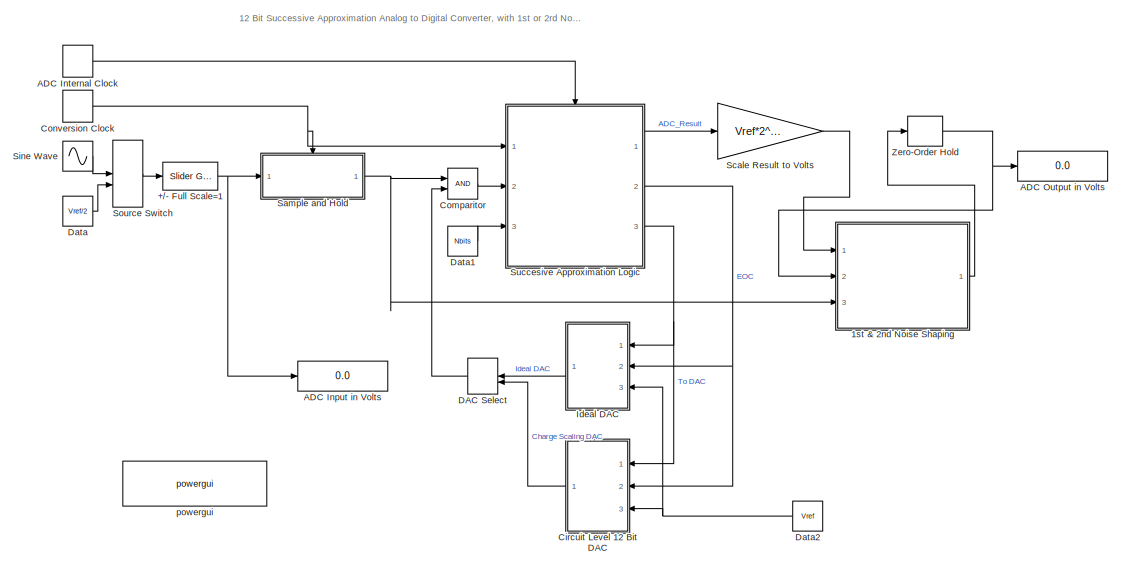
[diagram: root canvas - part 1/2, middle left region]
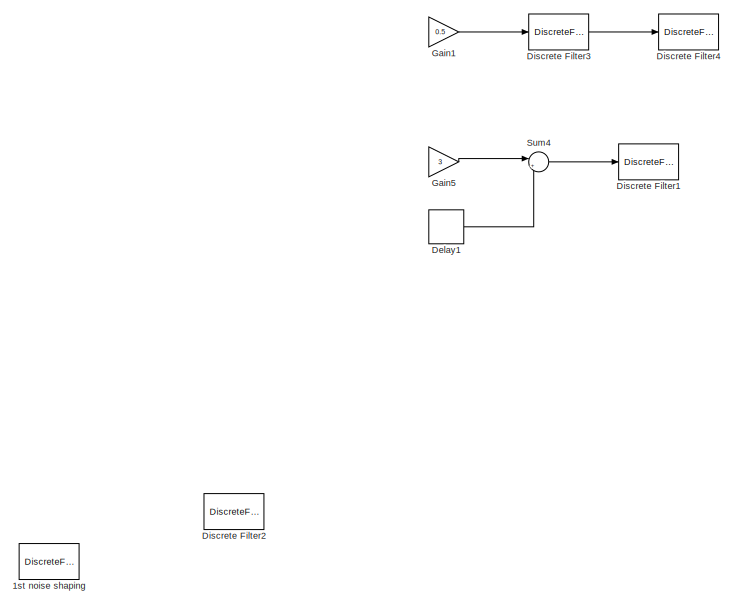
[diagram: root canvas - part 2/2, middle right region]
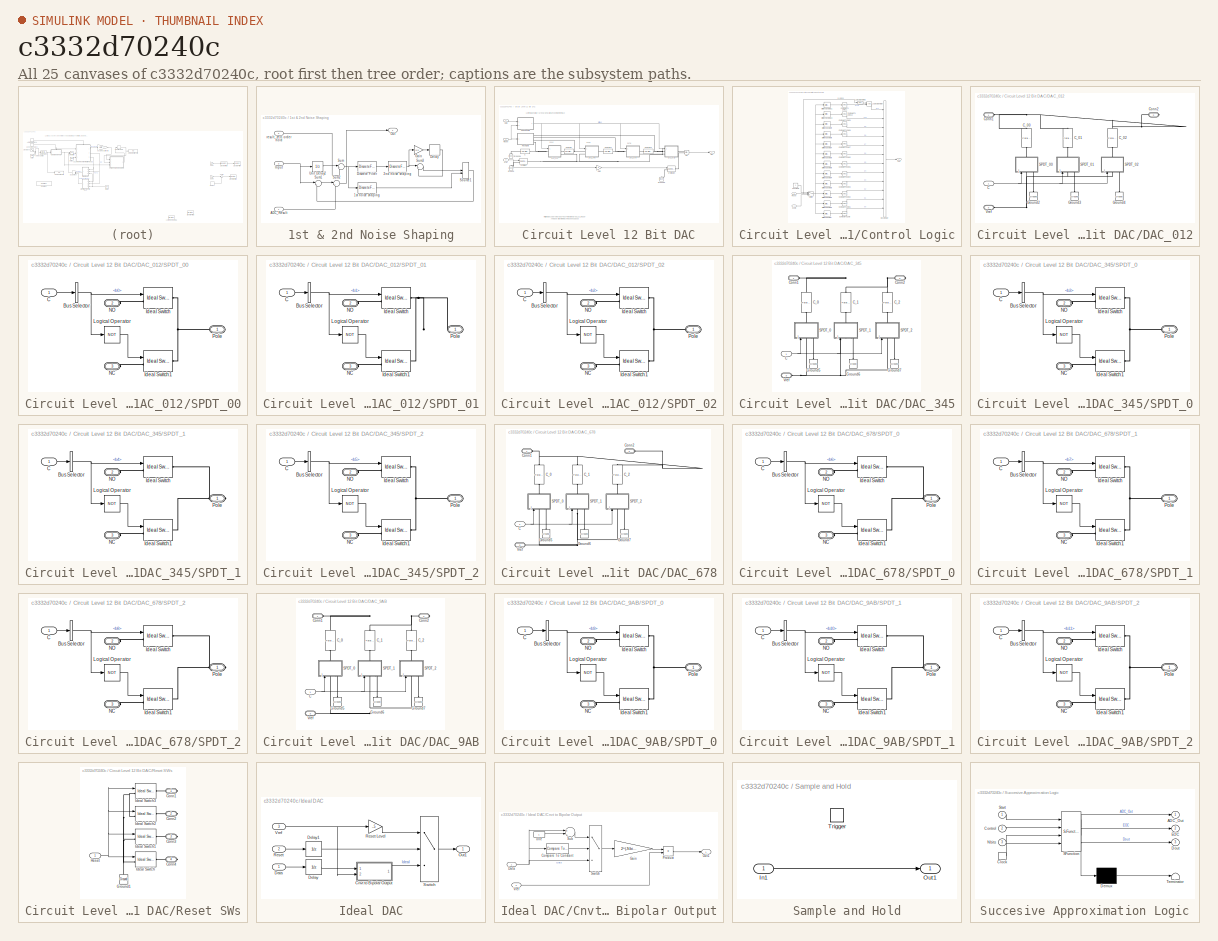
[diagram: thumbnail index - all 25 canvases of the model, root first then tree order]
MODEL slx_c3332d70240c
KIND model
CONFIG AbsTol = auto
CONFIG EnableMultiTasking = on
CONFIG FixedStep = auto
CONFIG InitFcn = % General Parameters\nNbits=12;  \nFs=5e7;      % ADC conversion rate\nADC_clock = Fs*(Nbits+2); % required clock rate \n\n\n% DAC parameters\nVref=2*sqrt(2);   % DAC voltage reference\nRon=100;             % switch on resistance\nC=0.3e-12;           % unit capacitor \n\n% Test Source Parameters\nA1=Vref/4; A2=A1;   % amplitudes\nF1=16*Fs/128;           % frequency\nF2=18*Fs/128;\n\n
CONFIG MaxStep = .5/ADC_clock
CONFIG MinStep = auto
CONFIG RelTol = 1e-3
CONFIG SampleTimeConstraint = Unconstrained
CONFIG Solver = ode23tb
CONFIG SolverName = ode23tb
CONFIG StartTime = 0.0
CONFIG StopTime = 1e-3
BLOCK [Reference] +//- Full Scale=1  REF=simulink/Math
Operations/Slider
Gain
  Ports = [1, 1]
  SourceBlock = simulink/Math\nOperations/Slider\nGain
  SourceProductBaseCode = SL
  SourceProductName = Simulink
  SourceType = Slider Gain
BLOCK [SubSystem] 1st & 2nd Noise Shaping
  Ports = [3, 1]
  RequestExecContextInheritance = off
BLOCK [DiscreteFilter] 1st & 2nd Noise Shaping/1st noise shaping
  Denominator = [1 -1]
  InputPortMap = u0
  Ports = [1, 1]
BLOCK [DiscreteFilter] 1st & 2nd Noise Shaping/2nd noise shaping
  Denominator = [1 -1]
  InputPortMap = u0
  Ports = [1, 1]
BLOCK [Inport] 1st & 2nd Noise Shaping/ADC_Result
  IconDisplay = Port number
BLOCK [Delay] 1st & 2nd Noise Shaping/Delay
  DelayLength = 1
  InputPortMap = u0
  Ports = [1, 1]
BLOCK [DiscreteFilter] 1st & 2nd Noise Shaping/Discrete Filter
  Denominator = [1 -1]
  InputPortMap = u0
  Numerator = [2]
  Ports = [1, 1]
BLOCK [Gain] 1st & 2nd Noise Shaping/Gain
  Gain = 0.5
  OutDataTypeStr = Inherit: Inherit via internal rule
  ParamDataTypeStr = Inherit: Inherit via internal rule
  SaturateOnIntegerOverflow = off
BLOCK [Inport] 1st & 2nd Noise Shaping/Input
  IconDisplay = Port number
  Port = 3
BLOCK [Outport] 1st & 2nd Noise Shaping/Out
  IconDisplay = Port number
BLOCK [ManualSwitch] 1st & 2nd Noise Shaping/Source1
  CurrentSetting = 0
BLOCK [Sum] 1st & 2nd Noise Shaping/Sum
  IconShape = round
  InputSameDT = off
  Inputs = |+-
  OutDataTypeStr = Inherit: Inherit via internal rule
  Ports = [2, 1]
  SaturateOnIntegerOverflow = off
BLOCK [Sum] 1st & 2nd Noise Shaping/Sum1
  IconShape = round
  InputSameDT = off
  Inputs = |++
  OutDataTypeStr = Inherit: Inherit via internal rule
  Ports = [2, 1]
  SaturateOnIntegerOverflow = off
BLOCK [Sum] 1st & 2nd Noise Shaping/Sum2
  IconShape = round
  InputSameDT = off
  Inputs = |++
  OutDataTypeStr = Inherit: Inherit via internal rule
  Ports = [2, 1]
  SaturateOnIntegerOverflow = off
BLOCK [Sum] 1st & 2nd Noise Shaping/Sum3
  IconShape = round
  InputSameDT = off
  Inputs = |+-
  OutDataTypeStr = Inherit: Inherit via internal rule
  Ports = [2, 1]
  SaturateOnIntegerOverflow = off
BLOCK [UnitDelay] 1st & 2nd Noise Shaping/Unit Delay2
  InputProcessing = Elements as channels (sample based)
  SampleTime = 1/Fs
BLOCK [Inport] 1st & 2nd Noise Shaping/result_zero order hold
  IconDisplay = Port number
  Port = 2
BLOCK [DiscreteFilter] 1st noise shaping
  Denominator = [1 -1]
  InputPortMap = u0
  Ports = [1, 1]
BLOCK [Display] ADC Input in Volts
  Decimation = 1000
  Ports = [1]
BLOCK [DiscretePulseGenerator] ADC Internal Clock
  Period = 1/ADC_clock
  Ports = [0, 1]
  PulseType = Time based
  PulseWidth = 5
BLOCK [Display] ADC Output in Volts
  Decimation = 1000
  Ports = [1]
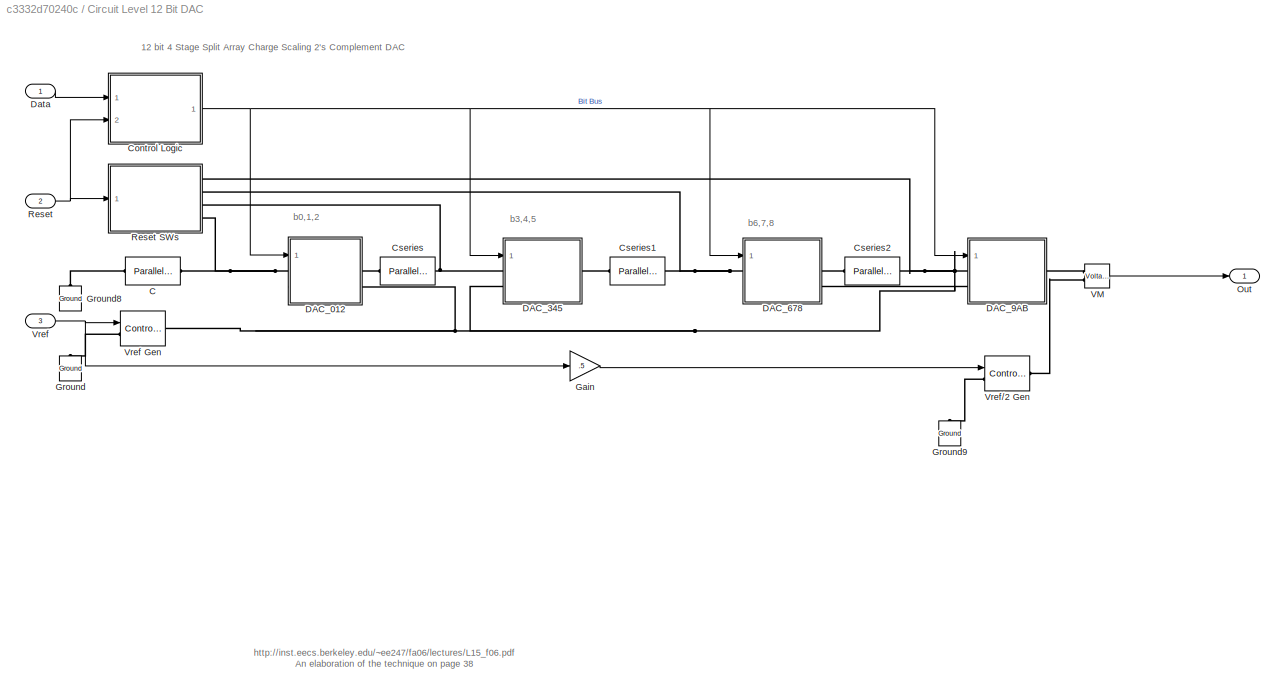
BLOCK [SubSystem] Circuit Level 12 Bit DAC
  Ports = [3, 1]
  RequestExecContextInheritance = off
BLOCK [Reference] Circuit Level 12 Bit DAC/C  REF=powerlib/Elements/Parallel RLC Branch
  AttributesFormatString = \n
  Ports = [0, 0, 0, 0, 0, 1, 1]
  SourceBlock = powerlib/Elements/Parallel RLC Branch
  SourceProductBaseCode = PS
  SourceProductName = Simscape Power Systems
  SourceType = Parallel RLC Branch
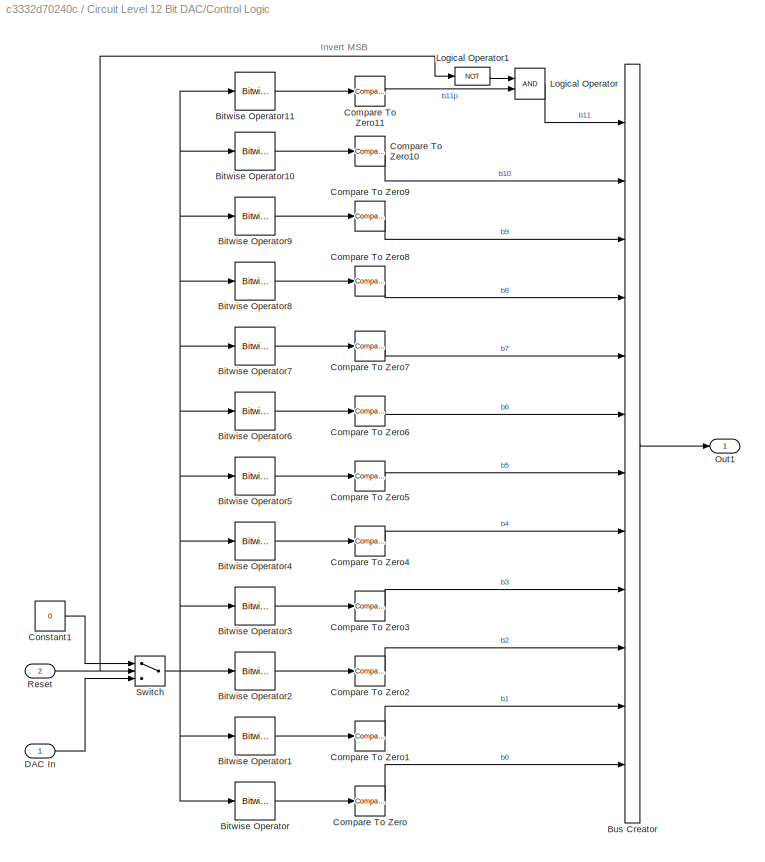
BLOCK [SubSystem] Circuit Level 12 Bit DAC/Control Logic
  Ports = [2, 1]
  RequestExecContextInheritance = off
BLOCK [Reference] Circuit Level 12 Bit DAC/Control Logic/Bitwise Operator  REF=simulink/Logic and Bit
Operations/Bitwise
Operator
  Ports = [1, 1]
  SourceBlock = simulink/Logic and Bit\nOperations/Bitwise\nOperator
  SourceProductBaseCode = SL
  SourceProductName = Simulink
  SourceType = Bitwise Operator
BLOCK [Reference] Circuit Level 12 Bit DAC/Control Logic/Bitwise Operator1  REF=simulink/Logic and Bit
Operations/Bitwise
Operator
  Ports = [1, 1]
  SourceBlock = simulink/Logic and Bit\nOperations/Bitwise\nOperator
  SourceProductBaseCode = SL
  SourceProductName = Simulink
  SourceType = Bitwise Operator
BLOCK [Reference] Circuit Level 12 Bit DAC/Control Logic/Bitwise Operator10  REF=simulink/Logic and Bit
Operations/Bitwise
Operator
  Ports = [1, 1]
  SourceBlock = simulink/Logic and Bit\nOperations/Bitwise\nOperator
  SourceProductBaseCode = SL
  SourceProductName = Simulink
  SourceType = Bitwise Operator
BLOCK [Reference] Circuit Level 12 Bit DAC/Control Logic/Bitwise Operator11  REF=simulink/Logic and Bit
Operations/Bitwise
Operator
  Ports = [1, 1]
  SourceBlock = simulink/Logic and Bit\nOperations/Bitwise\nOperator
  SourceProductBaseCode = SL
  SourceProductName = Simulink
  SourceType = Bitwise Operator
BLOCK [Reference] Circuit Level 12 Bit DAC/Control Logic/Bitwise Operator2  REF=simulink/Logic and Bit
Operations/Bitwise
Operator
  Ports = [1, 1]
  SourceBlock = simulink/Logic and Bit\nOperations/Bitwise\nOperator
  SourceProductBaseCode = SL
  SourceProductName = Simulink
  SourceType = Bitwise Operator
BLOCK [Reference] Circuit Level 12 Bit DAC/Control Logic/Bitwise Operator3  REF=simulink/Logic and Bit
Operations/Bitwise
Operator
  Ports = [1, 1]
  SourceBlock = simulink/Logic and Bit\nOperations/Bitwise\nOperator
  SourceProductBaseCode = SL
  SourceProductName = Simulink
  SourceType = Bitwise Operator
BLOCK [Reference] Circuit Level 12 Bit DAC/Control Logic/Bitwise Operator4  REF=simulink/Logic and Bit
Operations/Bitwise
Operator
  Ports = [1, 1]
  SourceBlock = simulink/Logic and Bit\nOperations/Bitwise\nOperator
  SourceProductBaseCode = SL
  SourceProductName = Simulink
  SourceType = Bitwise Operator
BLOCK [Reference] Circuit Level 12 Bit DAC/Control Logic/Bitwise Operator5  REF=simulink/Logic and Bit
Operations/Bitwise
Operator
  Ports = [1, 1]
  SourceBlock = simulink/Logic and Bit\nOperations/Bitwise\nOperator
  SourceProductBaseCode = SL
  SourceProductName = Simulink
  SourceType = Bitwise Operator
BLOCK [Reference] Circuit Level 12 Bit DAC/Control Logic/Bitwise Operator6  REF=simulink/Logic and Bit
Operations/Bitwise
Operator
  Ports = [1, 1]
  SourceBlock = simulink/Logic and Bit\nOperations/Bitwise\nOperator
  SourceProductBaseCode = SL
  SourceProductName = Simulink
  SourceType = Bitwise Operator
BLOCK [Reference] Circuit Level 12 Bit DAC/Control Logic/Bitwise Operator7  REF=simulink/Logic and Bit
Operations/Bitwise
Operator
  Ports = [1, 1]
  SourceBlock = simulink/Logic and Bit\nOperations/Bitwise\nOperator
  SourceProductBaseCode = SL
  SourceProductName = Simulink
  SourceType = Bitwise Operator
BLOCK [Reference] Circuit Level 12 Bit DAC/Control Logic/Bitwise Operator8  REF=simulink/Logic and Bit
Operations/Bitwise
Operator
  Ports = [1, 1]
  SourceBlock = simulink/Logic and Bit\nOperations/Bitwise\nOperator
  SourceProductBaseCode = SL
  SourceProductName = Simulink
  SourceType = Bitwise Operator
BLOCK [Reference] Circuit Level 12 Bit DAC/Control Logic/Bitwise Operator9  REF=simulink/Logic and Bit
Operations/Bitwise
Operator
  Ports = [1, 1]
  SourceBlock = simulink/Logic and Bit\nOperations/Bitwise\nOperator
  SourceProductBaseCode = SL
  SourceProductName = Simulink
  SourceType = Bitwise Operator
BLOCK [BusCreator] Circuit Level 12 Bit DAC/Control Logic/Bus Creator
  DisplayOption = bar
  InheritFromInputs = on
  Inputs = 12
  Ports = [12, 1]
BLOCK [Reference] Circuit Level 12 Bit DAC/Control Logic/Compare To Zero  REF=simulink/Logic and Bit
Operations/Compare
To Zero
  Ports = [1, 1]
  SourceBlock = simulink/Logic and Bit\nOperations/Compare\nTo Zero
  SourceProductBaseCode = SL
  SourceProductName = Simulink
  SourceType = Compare To Zero
BLOCK [Reference] Circuit Level 12 Bit DAC/Control Logic/Compare To Zero1  REF=simulink/Logic and Bit
Operations/Compare
To Zero
  Ports = [1, 1]
  SourceBlock = simulink/Logic and Bit\nOperations/Compare\nTo Zero
  SourceProductBaseCode = SL
  SourceProductName = Simulink
  SourceType = Compare To Zero
BLOCK [Reference] Circuit Level 12 Bit DAC/Control Logic/Compare To Zero10  REF=simulink/Logic and Bit
Operations/Compare
To Zero
  Ports = [1, 1]
  SourceBlock = simulink/Logic and Bit\nOperations/Compare\nTo Zero
  SourceProductBaseCode = SL
  SourceProductName = Simulink
  SourceType = Compare To Zero
BLOCK [Reference] Circuit Level 12 Bit DAC/Control Logic/Compare To Zero11  REF=simulink/Logic and Bit
Operations/Compare
To Zero
  Ports = [1, 1]
  SourceBlock = simulink/Logic and Bit\nOperations/Compare\nTo Zero
  SourceProductBaseCode = SL
  SourceProductName = Simulink
  SourceType = Compare To Zero
BLOCK [Reference] Circuit Level 12 Bit DAC/Control Logic/Compare To Zero2  REF=simulink/Logic and Bit
Operations/Compare
To Zero
  Ports = [1, 1]
  SourceBlock = simulink/Logic and Bit\nOperations/Compare\nTo Zero
  SourceProductBaseCode = SL
  SourceProductName = Simulink
  SourceType = Compare To Zero
BLOCK [Reference] Circuit Level 12 Bit DAC/Control Logic/Compare To Zero3  REF=simulink/Logic and Bit
Operations/Compare
To Zero
  Ports = [1, 1]
  SourceBlock = simulink/Logic and Bit\nOperations/Compare\nTo Zero
  SourceProductBaseCode = SL
  SourceProductName = Simulink
  SourceType = Compare To Zero
BLOCK [Reference] Circuit Level 12 Bit DAC/Control Logic/Compare To Zero4  REF=simulink/Logic and Bit
Operations/Compare
To Zero
  Ports = [1, 1]
  SourceBlock = simulink/Logic and Bit\nOperations/Compare\nTo Zero
  SourceProductBaseCode = SL
  SourceProductName = Simulink
  SourceType = Compare To Zero
BLOCK [Reference] Circuit Level 12 Bit DAC/Control Logic/Compare To Zero5  REF=simulink/Logic and Bit
Operations/Compare
To Zero
  Ports = [1, 1]
  SourceBlock = simulink/Logic and Bit\nOperations/Compare\nTo Zero
  SourceProductBaseCode = SL
  SourceProductName = Simulink
  SourceType = Compare To Zero
BLOCK [Reference] Circuit Level 12 Bit DAC/Control Logic/Compare To Zero6  REF=simulink/Logic and Bit
Operations/Compare
To Zero
  Ports = [1, 1]
  SourceBlock = simulink/Logic and Bit\nOperations/Compare\nTo Zero
  SourceProductBaseCode = SL
  SourceProductName = Simulink
  SourceType = Compare To Zero
BLOCK [Reference] Circuit Level 12 Bit DAC/Control Logic/Compare To Zero7  REF=simulink/Logic and Bit
Operations/Compare
To Zero
  Ports = [1, 1]
  SourceBlock = simulink/Logic and Bit\nOperations/Compare\nTo Zero
  SourceProductBaseCode = SL
  SourceProductName = Simulink
  SourceType = Compare To Zero
BLOCK [Reference] Circuit Level 12 Bit DAC/Control Logic/Compare To Zero8  REF=simulink/Logic and Bit
Operations/Compare
To Zero
  Ports = [1, 1]
  SourceBlock = simulink/Logic and Bit\nOperations/Compare\nTo Zero
  SourceProductBaseCode = SL
  SourceProductName = Simulink
  SourceType = Compare To Zero
BLOCK [Reference] Circuit Level 12 Bit DAC/Control Logic/Compare To Zero9  REF=simulink/Logic and Bit
Operations/Compare
To Zero
  Ports = [1, 1]
  SourceBlock = simulink/Logic and Bit\nOperations/Compare\nTo Zero
  SourceProductBaseCode = SL
  SourceProductName = Simulink
  SourceType = Compare To Zero
BLOCK [Constant] Circuit Level 12 Bit DAC/Control Logic/Constant1
  OutDataTypeStr = int16
  Value = 0
BLOCK [Inport] Circuit Level 12 Bit DAC/Control Logic/DAC In
  IconDisplay = Port number
BLOCK [Logic] Circuit Level 12 Bit DAC/Control Logic/Logical Operator
  AllPortsSameDT = off
  OutDataTypeStr = boolean
  Ports = [2, 1]
BLOCK [Logic] Circuit Level 12 Bit DAC/Control Logic/Logical Operator1
  AllPortsSameDT = off
  Operator = NOT
  OutDataTypeStr = boolean
  Ports = [1, 1]
BLOCK [Outport] Circuit Level 12 Bit DAC/Control Logic/Out1
  IconDisplay = Port number
BLOCK [Inport] Circuit Level 12 Bit DAC/Control Logic/Reset
  IconDisplay = Port number
  Port = 2
BLOCK [Switch] Circuit Level 12 Bit DAC/Control Logic/Switch
  InputSameDT = off
  SaturateOnIntegerOverflow = off
  Threshold = .5
BLOCK [Reference] Circuit Level 12 Bit DAC/Cseries  REF=powerlib/Elements/Parallel RLC Branch
  AttributesFormatString = \n
  Ports = [0, 0, 0, 0, 0, 1, 1]
  SourceBlock = powerlib/Elements/Parallel RLC Branch
  SourceProductBaseCode = PS
  SourceProductName = Simscape Power Systems
  SourceType = Parallel RLC Branch
BLOCK [Reference] Circuit Level 12 Bit DAC/Cseries1  REF=powerlib/Elements/Parallel RLC Branch
  AttributesFormatString = \n
  Ports = [0, 0, 0, 0, 0, 1, 1]
  SourceBlock = powerlib/Elements/Parallel RLC Branch
  SourceProductBaseCode = PS
  SourceProductName = Simscape Power Systems
  SourceType = Parallel RLC Branch
BLOCK [Reference] Circuit Level 12 Bit DAC/Cseries2  REF=powerlib/Elements/Parallel RLC Branch
  AttributesFormatString = \n
  Ports = [0, 0, 0, 0, 0, 1, 1]
  SourceBlock = powerlib/Elements/Parallel RLC Branch
  SourceProductBaseCode = PS
  SourceProductName = Simscape Power Systems
  SourceType = Parallel RLC Branch
BLOCK [SubSystem] Circuit Level 12 Bit DAC/DAC_012
  Ports = [1, 0, 0, 0, 0, 2, 1]
  RequestExecContextInheritance = off
BLOCK [Inport] Circuit Level 12 Bit DAC/DAC_012/C
  IconDisplay = Port number
BLOCK [Reference] Circuit Level 12 Bit DAC/DAC_012/C_00  REF=powerlib/Elements/Parallel RLC Branch
  AttributesFormatString = \n
  Ports = [0, 0, 0, 0, 0, 1, 1]
  SourceBlock = powerlib/Elements/Parallel RLC Branch
  SourceProductBaseCode = PS
  SourceProductName = Simscape Power Systems
  SourceType = Parallel RLC Branch
BLOCK [Reference] Circuit Level 12 Bit DAC/DAC_012/C_01  REF=powerlib/Elements/Parallel RLC Branch
  AttributesFormatString = \n
  Ports = [0, 0, 0, 0, 0, 1, 1]
  SourceBlock = powerlib/Elements/Parallel RLC Branch
  SourceProductBaseCode = PS
  SourceProductName = Simscape Power Systems
  SourceType = Parallel RLC Branch
BLOCK [Reference] Circuit Level 12 Bit DAC/DAC_012/C_02  REF=powerlib/Elements/Parallel RLC Branch
  AttributesFormatString = \n
  Ports = [0, 0, 0, 0, 0, 1, 1]
  SourceBlock = powerlib/Elements/Parallel RLC Branch
  SourceProductBaseCode = PS
  SourceProductName = Simscape Power Systems
  SourceType = Parallel RLC Branch
BLOCK [PMIOPort] Circuit Level 12 Bit DAC/DAC_012/Conn1
  Side = Left
BLOCK [PMIOPort] Circuit Level 12 Bit DAC/DAC_012/Conn2
  Port = 2
  Side = Right
BLOCK [Reference] Circuit Level 12 Bit DAC/DAC_012/Ground2  REF=powerlib/Elements/Ground
  Ports = [0, 0, 0, 0, 0, 1]
  SourceBlock = powerlib/Elements/Ground
  SourceProductBaseCode = PS
  SourceProductName = Simscape Power Systems
  SourceType = Ground
BLOCK [Reference] Circuit Level 12 Bit DAC/DAC_012/Ground3  REF=powerlib/Elements/Ground
  Ports = [0, 0, 0, 0, 0, 1]
  SourceBlock = powerlib/Elements/Ground
  SourceProductBaseCode = PS
  SourceProductName = Simscape Power Systems
  SourceType = Ground
BLOCK [Reference] Circuit Level 12 Bit DAC/DAC_012/Ground4  REF=powerlib/Elements/Ground
  Ports = [0, 0, 0, 0, 0, 1]
  SourceBlock = powerlib/Elements/Ground
  SourceProductBaseCode = PS
  SourceProductName = Simscape Power Systems
  SourceType = Ground
BLOCK [SubSystem] Circuit Level 12 Bit DAC/DAC_012/SPDT_00
  Ports = [1, 0, 0, 0, 0, 2, 1]
  RequestExecContextInheritance = off
BLOCK [BusSelector] Circuit Level 12 Bit DAC/DAC_012/SPDT_00/Bus Selector
  OutputAsBus = off
  OutputSignals = b0
  Ports = [1, 1]
BLOCK [Inport] Circuit Level 12 Bit DAC/DAC_012/SPDT_00/C
  IconDisplay = Port number
BLOCK [Reference] Circuit Level 12 Bit DAC/DAC_012/SPDT_00/Ideal Switch  REF=powerlib/Power
Electronics/Ideal Switch
  Ports = [1, 0, 0, 0, 0, 1, 1]
  SourceBlock = powerlib/Power\nElectronics/Ideal Switch
  SourceProductBaseCode = PS
  SourceProductName = Simscape Power Systems
  SourceType = Ideal Switch
BLOCK [Reference] Circuit Level 12 Bit DAC/DAC_012/SPDT_00/Ideal Switch1  REF=powerlib/Power
Electronics/Ideal Switch
  Ports = [1, 0, 0, 0, 0, 1, 1]
  SourceBlock = powerlib/Power\nElectronics/Ideal Switch
  SourceProductBaseCode = PS
  SourceProductName = Simscape Power Systems
  SourceType = Ideal Switch
BLOCK [Logic] Circuit Level 12 Bit DAC/DAC_012/SPDT_00/Logical Operator
  AllPortsSameDT = off
  Operator = NOT
  OutDataTypeStr = boolean
  Ports = [1, 1]
BLOCK [PMIOPort] Circuit Level 12 Bit DAC/DAC_012/SPDT_00/NC
  Port = 3
  Side = Left
BLOCK [PMIOPort] Circuit Level 12 Bit DAC/DAC_012/SPDT_00/NO
  Port = 2
  Side = Left
BLOCK [PMIOPort] Circuit Level 12 Bit DAC/DAC_012/SPDT_00/Pole
  Side = Right
BLOCK [SubSystem] Circuit Level 12 Bit DAC/DAC_012/SPDT_01
  Ports = [1, 0, 0, 0, 0, 2, 1]
  RequestExecContextInheritance = off
BLOCK [BusSelector] Circuit Level 12 Bit DAC/DAC_012/SPDT_01/Bus Selector
  OutputAsBus = off
  OutputSignals = b1
  Ports = [1, 1]
BLOCK [Inport] Circuit Level 12 Bit DAC/DAC_012/SPDT_01/C
  IconDisplay = Port number
BLOCK [Reference] Circuit Level 12 Bit DAC/DAC_012/SPDT_01/Ideal Switch  REF=powerlib/Power
Electronics/Ideal Switch
  Ports = [1, 0, 0, 0, 0, 1, 1]
  SourceBlock = powerlib/Power\nElectronics/Ideal Switch
  SourceProductBaseCode = PS
  SourceProductName = Simscape Power Systems
  SourceType = Ideal Switch
BLOCK [Reference] Circuit Level 12 Bit DAC/DAC_012/SPDT_01/Ideal Switch1  REF=powerlib/Power
Electronics/Ideal Switch
  Ports = [1, 0, 0, 0, 0, 1, 1]
  SourceBlock = powerlib/Power\nElectronics/Ideal Switch
  SourceProductBaseCode = PS
  SourceProductName = Simscape Power Systems
  SourceType = Ideal Switch
BLOCK [Logic] Circuit Level 12 Bit DAC/DAC_012/SPDT_01/Logical Operator
  AllPortsSameDT = off
  Operator = NOT
  OutDataTypeStr = boolean
  Ports = [1, 1]
BLOCK [PMIOPort] Circuit Level 12 Bit DAC/DAC_012/SPDT_01/NC
  Port = 3
  Side = Left
BLOCK [PMIOPort] Circuit Level 12 Bit DAC/DAC_012/SPDT_01/NO
  Port = 2
  Side = Left
BLOCK [PMIOPort] Circuit Level 12 Bit DAC/DAC_012/SPDT_01/Pole
  Side = Right
BLOCK [SubSystem] Circuit Level 12 Bit DAC/DAC_012/SPDT_02
  Ports = [1, 0, 0, 0, 0, 2, 1]
  RequestExecContextInheritance = off
BLOCK [BusSelector] Circuit Level 12 Bit DAC/DAC_012/SPDT_02/Bus Selector
  OutputAsBus = off
  OutputSignals = b2
  Ports = [1, 1]
BLOCK [Inport] Circuit Level 12 Bit DAC/DAC_012/SPDT_02/C
  IconDisplay = Port number
BLOCK [Reference] Circuit Level 12 Bit DAC/DAC_012/SPDT_02/Ideal Switch  REF=powerlib/Power
Electronics/Ideal Switch
  Ports = [1, 0, 0, 0, 0, 1, 1]
  SourceBlock = powerlib/Power\nElectronics/Ideal Switch
  SourceProductBaseCode = PS
  SourceProductName = Simscape Power Systems
  SourceType = Ideal Switch
BLOCK [Reference] Circuit Level 12 Bit DAC/DAC_012/SPDT_02/Ideal Switch1  REF=powerlib/Power
Electronics/Ideal Switch
  Ports = [1, 0, 0, 0, 0, 1, 1]
  SourceBlock = powerlib/Power\nElectronics/Ideal Switch
  SourceProductBaseCode = PS
  SourceProductName = Simscape Power Systems
  SourceType = Ideal Switch
BLOCK [Logic] Circuit Level 12 Bit DAC/DAC_012/SPDT_02/Logical Operator
  AllPortsSameDT = off
  Operator = NOT
  OutDataTypeStr = boolean
  Ports = [1, 1]
BLOCK [PMIOPort] Circuit Level 12 Bit DAC/DAC_012/SPDT_02/NC
  Port = 3
  Side = Left
BLOCK [PMIOPort] Circuit Level 12 Bit DAC/DAC_012/SPDT_02/NO
  Port = 2
  Side = Left
BLOCK [PMIOPort] Circuit Level 12 Bit DAC/DAC_012/SPDT_02/Pole
  Side = Right
BLOCK [PMIOPort] Circuit Level 12 Bit DAC/DAC_012/Vref
  Port = 3
  Side = Left
BLOCK [SubSystem] Circuit Level 12 Bit DAC/DAC_345
  Ports = [1, 0, 0, 0, 0, 2, 1]
  RequestExecContextInheritance = off
BLOCK [Inport] Circuit Level 12 Bit DAC/DAC_345/C
  IconDisplay = Port number
BLOCK [Reference] Circuit Level 12 Bit DAC/DAC_345/C_0  REF=powerlib/Elements/Parallel RLC Branch
  AttributesFormatString = \n
  Ports = [0, 0, 0, 0, 0, 1, 1]
  SourceBlock = powerlib/Elements/Parallel RLC Branch
  SourceProductBaseCode = PS
  SourceProductName = Simscape Power Systems
  SourceType = Parallel RLC Branch
BLOCK [Reference] Circuit Level 12 Bit DAC/DAC_345/C_1  REF=powerlib/Elements/Parallel RLC Branch
  AttributesFormatString = \n
  Ports = [0, 0, 0, 0, 0, 1, 1]
  SourceBlock = powerlib/Elements/Parallel RLC Branch
  SourceProductBaseCode = PS
  SourceProductName = Simscape Power Systems
  SourceType = Parallel RLC Branch
BLOCK [Reference] Circuit Level 12 Bit DAC/DAC_345/C_2  REF=powerlib/Elements/Parallel RLC Branch
  AttributesFormatString = \n
  Ports = [0, 0, 0, 0, 0, 1, 1]
  SourceBlock = powerlib/Elements/Parallel RLC Branch
  SourceProductBaseCode = PS
  SourceProductName = Simscape Power Systems
  SourceType = Parallel RLC Branch
BLOCK [PMIOPort] Circuit Level 12 Bit DAC/DAC_345/Conn1
  Side = Left
BLOCK [PMIOPort] Circuit Level 12 Bit DAC/DAC_345/Conn2
  Port = 2
  Side = Right
BLOCK [Reference] Circuit Level 12 Bit DAC/DAC_345/Ground5  REF=powerlib/Elements/Ground
  Ports = [0, 0, 0, 0, 0, 1]
  SourceBlock = powerlib/Elements/Ground
  SourceProductBaseCode = PS
  SourceProductName = Simscape Power Systems
  SourceType = Ground
BLOCK [Reference] Circuit Level 12 Bit DAC/DAC_345/Ground6  REF=powerlib/Elements/Ground
  Ports = [0, 0, 0, 0, 0, 1]
  SourceBlock = powerlib/Elements/Ground
  SourceProductBaseCode = PS
  SourceProductName = Simscape Power Systems
  SourceType = Ground
BLOCK [Reference] Circuit Level 12 Bit DAC/DAC_345/Ground7  REF=powerlib/Elements/Ground
  Ports = [0, 0, 0, 0, 0, 1]
  SourceBlock = powerlib/Elements/Ground
  SourceProductBaseCode = PS
  SourceProductName = Simscape Power Systems
  SourceType = Ground
BLOCK [SubSystem] Circuit Level 12 Bit DAC/DAC_345/SPDT_0
  Ports = [1, 0, 0, 0, 0, 2, 1]
  RequestExecContextInheritance = off
BLOCK [BusSelector] Circuit Level 12 Bit DAC/DAC_345/SPDT_0/Bus Selector
  OutputAsBus = off
  OutputSignals = b3
  Ports = [1, 1]
BLOCK [Inport] Circuit Level 12 Bit DAC/DAC_345/SPDT_0/C
  IconDisplay = Port number
BLOCK [Reference] Circuit Level 12 Bit DAC/DAC_345/SPDT_0/Ideal Switch  REF=powerlib/Power
Electronics/Ideal Switch
  Ports = [1, 0, 0, 0, 0, 1, 1]
  SourceBlock = powerlib/Power\nElectronics/Ideal Switch
  SourceProductBaseCode = PS
  SourceProductName = Simscape Power Systems
  SourceType = Ideal Switch
BLOCK [Reference] Circuit Level 12 Bit DAC/DAC_345/SPDT_0/Ideal Switch1  REF=powerlib/Power
Electronics/Ideal Switch
  Ports = [1, 0, 0, 0, 0, 1, 1]
  SourceBlock = powerlib/Power\nElectronics/Ideal Switch
  SourceProductBaseCode = PS
  SourceProductName = Simscape Power Systems
  SourceType = Ideal Switch
BLOCK [Logic] Circuit Level 12 Bit DAC/DAC_345/SPDT_0/Logical Operator
  AllPortsSameDT = off
  Operator = NOT
  OutDataTypeStr = boolean
  Ports = [1, 1]
BLOCK [PMIOPort] Circuit Level 12 Bit DAC/DAC_345/SPDT_0/NC
  Port = 3
  Side = Left
BLOCK [PMIOPort] Circuit Level 12 Bit DAC/DAC_345/SPDT_0/NO
  Port = 2
  Side = Left
BLOCK [PMIOPort] Circuit Level 12 Bit DAC/DAC_345/SPDT_0/Pole
  Side = Right
BLOCK [SubSystem] Circuit Level 12 Bit DAC/DAC_345/SPDT_1
  Ports = [1, 0, 0, 0, 0, 2, 1]
  RequestExecContextInheritance = off
BLOCK [BusSelector] Circuit Level 12 Bit DAC/DAC_345/SPDT_1/Bus Selector
  OutputAsBus = off
  OutputSignals = b4
  Ports = [1, 1]
BLOCK [Inport] Circuit Level 12 Bit DAC/DAC_345/SPDT_1/C
  IconDisplay = Port number
BLOCK [Reference] Circuit Level 12 Bit DAC/DAC_345/SPDT_1/Ideal Switch  REF=powerlib/Power
Electronics/Ideal Switch
  Ports = [1, 0, 0, 0, 0, 1, 1]
  SourceBlock = powerlib/Power\nElectronics/Ideal Switch
  SourceProductBaseCode = PS
  SourceProductName = Simscape Power Systems
  SourceType = Ideal Switch
BLOCK [Reference] Circuit Level 12 Bit DAC/DAC_345/SPDT_1/Ideal Switch1  REF=powerlib/Power
Electronics/Ideal Switch
  Ports = [1, 0, 0, 0, 0, 1, 1]
  SourceBlock = powerlib/Power\nElectronics/Ideal Switch
  SourceProductBaseCode = PS
  SourceProductName = Simscape Power Systems
  SourceType = Ideal Switch
BLOCK [Logic] Circuit Level 12 Bit DAC/DAC_345/SPDT_1/Logical Operator
  AllPortsSameDT = off
  Operator = NOT
  OutDataTypeStr = boolean
  Ports = [1, 1]
BLOCK [PMIOPort] Circuit Level 12 Bit DAC/DAC_345/SPDT_1/NC
  Port = 3
  Side = Left
BLOCK [PMIOPort] Circuit Level 12 Bit DAC/DAC_345/SPDT_1/NO
  Port = 2
  Side = Left
BLOCK [PMIOPort] Circuit Level 12 Bit DAC/DAC_345/SPDT_1/Pole
  Side = Right
BLOCK [SubSystem] Circuit Level 12 Bit DAC/DAC_345/SPDT_2
  Ports = [1, 0, 0, 0, 0, 2, 1]
  RequestExecContextInheritance = off
BLOCK [BusSelector] Circuit Level 12 Bit DAC/DAC_345/SPDT_2/Bus Selector
  OutputAsBus = off
  OutputSignals = b5
  Ports = [1, 1]
BLOCK [Inport] Circuit Level 12 Bit DAC/DAC_345/SPDT_2/C
  IconDisplay = Port number
BLOCK [Reference] Circuit Level 12 Bit DAC/DAC_345/SPDT_2/Ideal Switch  REF=powerlib/Power
Electronics/Ideal Switch
  Ports = [1, 0, 0, 0, 0, 1, 1]
  SourceBlock = powerlib/Power\nElectronics/Ideal Switch
  SourceProductBaseCode = PS
  SourceProductName = Simscape Power Systems
  SourceType = Ideal Switch
BLOCK [Reference] Circuit Level 12 Bit DAC/DAC_345/SPDT_2/Ideal Switch1  REF=powerlib/Power
Electronics/Ideal Switch
  Ports = [1, 0, 0, 0, 0, 1, 1]
  SourceBlock = powerlib/Power\nElectronics/Ideal Switch
  SourceProductBaseCode = PS
  SourceProductName = Simscape Power Systems
  SourceType = Ideal Switch
BLOCK [Logic] Circuit Level 12 Bit DAC/DAC_345/SPDT_2/Logical Operator
  AllPortsSameDT = off
  Operator = NOT
  OutDataTypeStr = boolean
  Ports = [1, 1]
BLOCK [PMIOPort] Circuit Level 12 Bit DAC/DAC_345/SPDT_2/NC
  Port = 3
  Side = Left
BLOCK [PMIOPort] Circuit Level 12 Bit DAC/DAC_345/SPDT_2/NO
  Port = 2
  Side = Left
BLOCK [PMIOPort] Circuit Level 12 Bit DAC/DAC_345/SPDT_2/Pole
  Side = Right
BLOCK [PMIOPort] Circuit Level 12 Bit DAC/DAC_345/Vref
  Port = 3
  Side = Left
BLOCK [SubSystem] Circuit Level 12 Bit DAC/DAC_678
  Ports = [1, 0, 0, 0, 0, 2, 1]
  RequestExecContextInheritance = off
BLOCK [Inport] Circuit Level 12 Bit DAC/DAC_678/C
  IconDisplay = Port number
BLOCK [Reference] Circuit Level 12 Bit DAC/DAC_678/C_0  REF=powerlib/Elements/Parallel RLC Branch
  AttributesFormatString = \n
  Ports = [0, 0, 0, 0, 0, 1, 1]
  SourceBlock = powerlib/Elements/Parallel RLC Branch
  SourceProductBaseCode = PS
  SourceProductName = Simscape Power Systems
  SourceType = Parallel RLC Branch
BLOCK [Reference] Circuit Level 12 Bit DAC/DAC_678/C_1  REF=powerlib/Elements/Parallel RLC Branch
  AttributesFormatString = \n
  Ports = [0, 0, 0, 0, 0, 1, 1]
  SourceBlock = powerlib/Elements/Parallel RLC Branch
  SourceProductBaseCode = PS
  SourceProductName = Simscape Power Systems
  SourceType = Parallel RLC Branch
BLOCK [Reference] Circuit Level 12 Bit DAC/DAC_678/C_2  REF=powerlib/Elements/Parallel RLC Branch
  AttributesFormatString = \n
  Ports = [0, 0, 0, 0, 0, 1, 1]
  SourceBlock = powerlib/Elements/Parallel RLC Branch
  SourceProductBaseCode = PS
  SourceProductName = Simscape Power Systems
  SourceType = Parallel RLC Branch
BLOCK [PMIOPort] Circuit Level 12 Bit DAC/DAC_678/Conn1
  Side = Left
BLOCK [PMIOPort] Circuit Level 12 Bit DAC/DAC_678/Conn2
  Port = 2
  Side = Right
BLOCK [Reference] Circuit Level 12 Bit DAC/DAC_678/Ground5  REF=powerlib/Elements/Ground
  Ports = [0, 0, 0, 0, 0, 1]
  SourceBlock = powerlib/Elements/Ground
  SourceProductBaseCode = PS
  SourceProductName = Simscape Power Systems
  SourceType = Ground
BLOCK [Reference] Circuit Level 12 Bit DAC/DAC_678/Ground6  REF=powerlib/Elements/Ground
  Ports = [0, 0, 0, 0, 0, 1]
  SourceBlock = powerlib/Elements/Ground
  SourceProductBaseCode = PS
  SourceProductName = Simscape Power Systems
  SourceType = Ground
BLOCK [Reference] Circuit Level 12 Bit DAC/DAC_678/Ground7  REF=powerlib/Elements/Ground
  Ports = [0, 0, 0, 0, 0, 1]
  SourceBlock = powerlib/Elements/Ground
  SourceProductBaseCode = PS
  SourceProductName = Simscape Power Systems
  SourceType = Ground
BLOCK [SubSystem] Circuit Level 12 Bit DAC/DAC_678/SPDT_0
  Ports = [1, 0, 0, 0, 0, 2, 1]
  RequestExecContextInheritance = off
BLOCK [BusSelector] Circuit Level 12 Bit DAC/DAC_678/SPDT_0/Bus Selector
  OutputAsBus = off
  OutputSignals = b6
  Ports = [1, 1]
BLOCK [Inport] Circuit Level 12 Bit DAC/DAC_678/SPDT_0/C
  IconDisplay = Port number
BLOCK [Reference] Circuit Level 12 Bit DAC/DAC_678/SPDT_0/Ideal Switch  REF=powerlib/Power
Electronics/Ideal Switch
  Ports = [1, 0, 0, 0, 0, 1, 1]
  SourceBlock = powerlib/Power\nElectronics/Ideal Switch
  SourceProductBaseCode = PS
  SourceProductName = Simscape Power Systems
  SourceType = Ideal Switch
BLOCK [Reference] Circuit Level 12 Bit DAC/DAC_678/SPDT_0/Ideal Switch1  REF=powerlib/Power
Electronics/Ideal Switch
  Ports = [1, 0, 0, 0, 0, 1, 1]
  SourceBlock = powerlib/Power\nElectronics/Ideal Switch
  SourceProductBaseCode = PS
  SourceProductName = Simscape Power Systems
  SourceType = Ideal Switch
BLOCK [Logic] Circuit Level 12 Bit DAC/DAC_678/SPDT_0/Logical Operator
  AllPortsSameDT = off
  Operator = NOT
  OutDataTypeStr = boolean
  Ports = [1, 1]
BLOCK [PMIOPort] Circuit Level 12 Bit DAC/DAC_678/SPDT_0/NC
  Port = 3
  Side = Left
BLOCK [PMIOPort] Circuit Level 12 Bit DAC/DAC_678/SPDT_0/NO
  Port = 2
  Side = Left
BLOCK [PMIOPort] Circuit Level 12 Bit DAC/DAC_678/SPDT_0/Pole
  Side = Right
BLOCK [SubSystem] Circuit Level 12 Bit DAC/DAC_678/SPDT_1
  Ports = [1, 0, 0, 0, 0, 2, 1]
  RequestExecContextInheritance = off
BLOCK [BusSelector] Circuit Level 12 Bit DAC/DAC_678/SPDT_1/Bus Selector
  OutputAsBus = off
  OutputSignals = b7
  Ports = [1, 1]
BLOCK [Inport] Circuit Level 12 Bit DAC/DAC_678/SPDT_1/C
  IconDisplay = Port number
BLOCK [Reference] Circuit Level 12 Bit DAC/DAC_678/SPDT_1/Ideal Switch  REF=powerlib/Power
Electronics/Ideal Switch
  Ports = [1, 0, 0, 0, 0, 1, 1]
  SourceBlock = powerlib/Power\nElectronics/Ideal Switch
  SourceProductBaseCode = PS
  SourceProductName = Simscape Power Systems
  SourceType = Ideal Switch
BLOCK [Reference] Circuit Level 12 Bit DAC/DAC_678/SPDT_1/Ideal Switch1  REF=powerlib/Power
Electronics/Ideal Switch
  Ports = [1, 0, 0, 0, 0, 1, 1]
  SourceBlock = powerlib/Power\nElectronics/Ideal Switch
  SourceProductBaseCode = PS
  SourceProductName = Simscape Power Systems
  SourceType = Ideal Switch
BLOCK [Logic] Circuit Level 12 Bit DAC/DAC_678/SPDT_1/Logical Operator
  AllPortsSameDT = off
  Operator = NOT
  OutDataTypeStr = boolean
  Ports = [1, 1]
BLOCK [PMIOPort] Circuit Level 12 Bit DAC/DAC_678/SPDT_1/NC
  Port = 3
  Side = Left
BLOCK [PMIOPort] Circuit Level 12 Bit DAC/DAC_678/SPDT_1/NO
  Port = 2
  Side = Left
BLOCK [PMIOPort] Circuit Level 12 Bit DAC/DAC_678/SPDT_1/Pole
  Side = Right
BLOCK [SubSystem] Circuit Level 12 Bit DAC/DAC_678/SPDT_2
  Ports = [1, 0, 0, 0, 0, 2, 1]
  RequestExecContextInheritance = off
BLOCK [BusSelector] Circuit Level 12 Bit DAC/DAC_678/SPDT_2/Bus Selector
  OutputAsBus = off
  OutputSignals = b8
  Ports = [1, 1]
BLOCK [Inport] Circuit Level 12 Bit DAC/DAC_678/SPDT_2/C
  IconDisplay = Port number
BLOCK [Reference] Circuit Level 12 Bit DAC/DAC_678/SPDT_2/Ideal Switch  REF=powerlib/Power
Electronics/Ideal Switch
  Ports = [1, 0, 0, 0, 0, 1, 1]
  SourceBlock = powerlib/Power\nElectronics/Ideal Switch
  SourceProductBaseCode = PS
  SourceProductName = Simscape Power Systems
  SourceType = Ideal Switch
BLOCK [Reference] Circuit Level 12 Bit DAC/DAC_678/SPDT_2/Ideal Switch1  REF=powerlib/Power
Electronics/Ideal Switch
  Ports = [1, 0, 0, 0, 0, 1, 1]
  SourceBlock = powerlib/Power\nElectronics/Ideal Switch
  SourceProductBaseCode = PS
  SourceProductName = Simscape Power Systems
  SourceType = Ideal Switch
BLOCK [Logic] Circuit Level 12 Bit DAC/DAC_678/SPDT_2/Logical Operator
  AllPortsSameDT = off
  Operator = NOT
  OutDataTypeStr = boolean
  Ports = [1, 1]
BLOCK [PMIOPort] Circuit Level 12 Bit DAC/DAC_678/SPDT_2/NC
  Port = 3
  Side = Left
BLOCK [PMIOPort] Circuit Level 12 Bit DAC/DAC_678/SPDT_2/NO
  Port = 2
  Side = Left
BLOCK [PMIOPort] Circuit Level 12 Bit DAC/DAC_678/SPDT_2/Pole
  Side = Right
BLOCK [PMIOPort] Circuit Level 12 Bit DAC/DAC_678/Vref
  Port = 3
  Side = Left
BLOCK [SubSystem] Circuit Level 12 Bit DAC/DAC_9AB
  Ports = [1, 0, 0, 0, 0, 2, 1]
  RequestExecContextInheritance = off
BLOCK [Inport] Circuit Level 12 Bit DAC/DAC_9AB/C
  IconDisplay = Port number
BLOCK [Reference] Circuit Level 12 Bit DAC/DAC_9AB/C_0  REF=powerlib/Elements/Parallel RLC Branch
  AttributesFormatString = \n
  Ports = [0, 0, 0, 0, 0, 1, 1]
  SourceBlock = powerlib/Elements/Parallel RLC Branch
  SourceProductBaseCode = PS
  SourceProductName = Simscape Power Systems
  SourceType = Parallel RLC Branch
BLOCK [Reference] Circuit Level 12 Bit DAC/DAC_9AB/C_1  REF=powerlib/Elements/Parallel RLC Branch
  AttributesFormatString = \n
  Ports = [0, 0, 0, 0, 0, 1, 1]
  SourceBlock = powerlib/Elements/Parallel RLC Branch
  SourceProductBaseCode = PS
  SourceProductName = Simscape Power Systems
  SourceType = Parallel RLC Branch
BLOCK [Reference] Circuit Level 12 Bit DAC/DAC_9AB/C_2  REF=powerlib/Elements/Parallel RLC Branch
  AttributesFormatString = \n
  Ports = [0, 0, 0, 0, 0, 1, 1]
  SourceBlock = powerlib/Elements/Parallel RLC Branch
  SourceProductBaseCode = PS
  SourceProductName = Simscape Power Systems
  SourceType = Parallel RLC Branch
BLOCK [PMIOPort] Circuit Level 12 Bit DAC/DAC_9AB/Conn1
  Side = Left
BLOCK [PMIOPort] Circuit Level 12 Bit DAC/DAC_9AB/Conn2
  Port = 2
  Side = Right
BLOCK [Reference] Circuit Level 12 Bit DAC/DAC_9AB/Ground5  REF=powerlib/Elements/Ground
  Ports = [0, 0, 0, 0, 0, 1]
  SourceBlock = powerlib/Elements/Ground
  SourceProductBaseCode = PS
  SourceProductName = Simscape Power Systems
  SourceType = Ground
BLOCK [Reference] Circuit Level 12 Bit DAC/DAC_9AB/Ground6  REF=powerlib/Elements/Ground
  Ports = [0, 0, 0, 0, 0, 1]
  SourceBlock = powerlib/Elements/Ground
  SourceProductBaseCode = PS
  SourceProductName = Simscape Power Systems
  SourceType = Ground
BLOCK [Reference] Circuit Level 12 Bit DAC/DAC_9AB/Ground7  REF=powerlib/Elements/Ground
  Ports = [0, 0, 0, 0, 0, 1]
  SourceBlock = powerlib/Elements/Ground
  SourceProductBaseCode = PS
  SourceProductName = Simscape Power Systems
  SourceType = Ground
BLOCK [SubSystem] Circuit Level 12 Bit DAC/DAC_9AB/SPDT_0
  Ports = [1, 0, 0, 0, 0, 2, 1]
  RequestExecContextInheritance = off
BLOCK [BusSelector] Circuit Level 12 Bit DAC/DAC_9AB/SPDT_0/Bus Selector
  OutputAsBus = off
  OutputSignals = b9
  Ports = [1, 1]
BLOCK [Inport] Circuit Level 12 Bit DAC/DAC_9AB/SPDT_0/C
  IconDisplay = Port number
BLOCK [Reference] Circuit Level 12 Bit DAC/DAC_9AB/SPDT_0/Ideal Switch  REF=powerlib/Power
Electronics/Ideal Switch
  Ports = [1, 0, 0, 0, 0, 1, 1]
  SourceBlock = powerlib/Power\nElectronics/Ideal Switch
  SourceProductBaseCode = PS
  SourceProductName = Simscape Power Systems
  SourceType = Ideal Switch
BLOCK [Reference] Circuit Level 12 Bit DAC/DAC_9AB/SPDT_0/Ideal Switch1  REF=powerlib/Power
Electronics/Ideal Switch
  Ports = [1, 0, 0, 0, 0, 1, 1]
  SourceBlock = powerlib/Power\nElectronics/Ideal Switch
  SourceProductBaseCode = PS
  SourceProductName = Simscape Power Systems
  SourceType = Ideal Switch
BLOCK [Logic] Circuit Level 12 Bit DAC/DAC_9AB/SPDT_0/Logical Operator
  AllPortsSameDT = off
  Operator = NOT
  OutDataTypeStr = boolean
  Ports = [1, 1]
BLOCK [PMIOPort] Circuit Level 12 Bit DAC/DAC_9AB/SPDT_0/NC
  Port = 3
  Side = Left
BLOCK [PMIOPort] Circuit Level 12 Bit DAC/DAC_9AB/SPDT_0/NO
  Port = 2
  Side = Left
BLOCK [PMIOPort] Circuit Level 12 Bit DAC/DAC_9AB/SPDT_0/Pole
  Side = Right
BLOCK [SubSystem] Circuit Level 12 Bit DAC/DAC_9AB/SPDT_1
  Ports = [1, 0, 0, 0, 0, 2, 1]
  RequestExecContextInheritance = off
BLOCK [BusSelector] Circuit Level 12 Bit DAC/DAC_9AB/SPDT_1/Bus Selector
  OutputAsBus = off
  OutputSignals = b10
  Ports = [1, 1]
BLOCK [Inport] Circuit Level 12 Bit DAC/DAC_9AB/SPDT_1/C
  IconDisplay = Port number
BLOCK [Reference] Circuit Level 12 Bit DAC/DAC_9AB/SPDT_1/Ideal Switch  REF=powerlib/Power
Electronics/Ideal Switch
  Ports = [1, 0, 0, 0, 0, 1, 1]
  SourceBlock = powerlib/Power\nElectronics/Ideal Switch
  SourceProductBaseCode = PS
  SourceProductName = Simscape Power Systems
  SourceType = Ideal Switch
BLOCK [Reference] Circuit Level 12 Bit DAC/DAC_9AB/SPDT_1/Ideal Switch1  REF=powerlib/Power
Electronics/Ideal Switch
  Ports = [1, 0, 0, 0, 0, 1, 1]
  SourceBlock = powerlib/Power\nElectronics/Ideal Switch
  SourceProductBaseCode = PS
  SourceProductName = Simscape Power Systems
  SourceType = Ideal Switch
BLOCK [Logic] Circuit Level 12 Bit DAC/DAC_9AB/SPDT_1/Logical Operator
  AllPortsSameDT = off
  Operator = NOT
  OutDataTypeStr = boolean
  Ports = [1, 1]
BLOCK [PMIOPort] Circuit Level 12 Bit DAC/DAC_9AB/SPDT_1/NC
  Port = 3
  Side = Left
BLOCK [PMIOPort] Circuit Level 12 Bit DAC/DAC_9AB/SPDT_1/NO
  Port = 2
  Side = Left
BLOCK [PMIOPort] Circuit Level 12 Bit DAC/DAC_9AB/SPDT_1/Pole
  Side = Right
BLOCK [SubSystem] Circuit Level 12 Bit DAC/DAC_9AB/SPDT_2
  Ports = [1, 0, 0, 0, 0, 2, 1]
  RequestExecContextInheritance = off
BLOCK [BusSelector] Circuit Level 12 Bit DAC/DAC_9AB/SPDT_2/Bus Selector
  OutputAsBus = off
  OutputSignals = b11
  Ports = [1, 1]
BLOCK [Inport] Circuit Level 12 Bit DAC/DAC_9AB/SPDT_2/C
  IconDisplay = Port number
BLOCK [Reference] Circuit Level 12 Bit DAC/DAC_9AB/SPDT_2/Ideal Switch  REF=powerlib/Power
Electronics/Ideal Switch
  Ports = [1, 0, 0, 0, 0, 1, 1]
  SourceBlock = powerlib/Power\nElectronics/Ideal Switch
  SourceProductBaseCode = PS
  SourceProductName = Simscape Power Systems
  SourceType = Ideal Switch
BLOCK [Reference] Circuit Level 12 Bit DAC/DAC_9AB/SPDT_2/Ideal Switch1  REF=powerlib/Power
Electronics/Ideal Switch
  Ports = [1, 0, 0, 0, 0, 1, 1]
  SourceBlock = powerlib/Power\nElectronics/Ideal Switch
  SourceProductBaseCode = PS
  SourceProductName = Simscape Power Systems
  SourceType = Ideal Switch
BLOCK [Logic] Circuit Level 12 Bit DAC/DAC_9AB/SPDT_2/Logical Operator
  AllPortsSameDT = off
  Operator = NOT
  OutDataTypeStr = boolean
  Ports = [1, 1]
BLOCK [PMIOPort] Circuit Level 12 Bit DAC/DAC_9AB/SPDT_2/NC
  Port = 3
  Side = Left
BLOCK [PMIOPort] Circuit Level 12 Bit DAC/DAC_9AB/SPDT_2/NO
  Port = 2
  Side = Left
BLOCK [PMIOPort] Circuit Level 12 Bit DAC/DAC_9AB/SPDT_2/Pole
  Side = Right
BLOCK [PMIOPort] Circuit Level 12 Bit DAC/DAC_9AB/Vref
  Port = 3
  Side = Left
BLOCK [Inport] Circuit Level 12 Bit DAC/Data
  IconDisplay = Port number
BLOCK [Gain] Circuit Level 12 Bit DAC/Gain
  Gain = .5
  OutDataTypeStr = Inherit: Inherit via internal rule
  ParamDataTypeStr = Inherit: Inherit via internal rule
  SaturateOnIntegerOverflow = off
BLOCK [Reference] Circuit Level 12 Bit DAC/Ground  REF=powerlib/Elements/Ground
  Ports = [0, 0, 0, 0, 0, 1]
  SourceBlock = powerlib/Elements/Ground
  SourceProductBaseCode = PS
  SourceProductName = Simscape Power Systems
  SourceType = Ground
BLOCK [Reference] Circuit Level 12 Bit DAC/Ground8  REF=powerlib/Elements/Ground
  Ports = [0, 0, 0, 0, 0, 1]
  SourceBlock = powerlib/Elements/Ground
  SourceProductBaseCode = PS
  SourceProductName = Simscape Power Systems
  SourceType = Ground
BLOCK [Reference] Circuit Level 12 Bit DAC/Ground9  REF=powerlib/Elements/Ground
  Ports = [0, 0, 0, 0, 0, 1]
  SourceBlock = powerlib/Elements/Ground
  SourceProductBaseCode = PS
  SourceProductName = Simscape Power Systems
  SourceType = Ground
BLOCK [Outport] Circuit Level 12 Bit DAC/Out
  IconDisplay = Port number
BLOCK [Inport] Circuit Level 12 Bit DAC/Reset
  IconDisplay = Port number
  Port = 2
BLOCK [SubSystem] Circuit Level 12 Bit DAC/Reset SWs
  Ports = [1, 0, 0, 0, 0, 0, 4]
  RequestExecContextInheritance = off
BLOCK [PMIOPort] Circuit Level 12 Bit DAC/Reset SWs/Conn1
  Side = Right
BLOCK [PMIOPort] Circuit Level 12 Bit DAC/Reset SWs/Conn2
  Port = 2
  Side = Right
BLOCK [PMIOPort] Circuit Level 12 Bit DAC/Reset SWs/Conn3
  Port = 3
  Side = Right
BLOCK [PMIOPort] Circuit Level 12 Bit DAC/Reset SWs/Conn4
  Port = 4
  Side = Right
BLOCK [Reference] Circuit Level 12 Bit DAC/Reset SWs/Ground1  REF=powerlib/Elements/Ground
  Ports = [0, 0, 0, 0, 0, 1]
  SourceBlock = powerlib/Elements/Ground
  SourceProductBaseCode = PS
  SourceProductName = Simscape Power Systems
  SourceType = Ground
BLOCK [Reference] Circuit Level 12 Bit DAC/Reset SWs/Ideal Switch  REF=powerlib/Power
Electronics/Ideal Switch
  Ports = [1, 0, 0, 0, 0, 1, 1]
  SourceBlock = powerlib/Power\nElectronics/Ideal Switch
  SourceProductBaseCode = PS
  SourceProductName = Simscape Power Systems
  SourceType = Ideal Switch
BLOCK [Reference] Circuit Level 12 Bit DAC/Reset SWs/Ideal Switch1  REF=powerlib/Power
Electronics/Ideal Switch
  Ports = [1, 0, 0, 0, 0, 1, 1]
  SourceBlock = powerlib/Power\nElectronics/Ideal Switch
  SourceProductBaseCode = PS
  SourceProductName = Simscape Power Systems
  SourceType = Ideal Switch
BLOCK [Reference] Circuit Level 12 Bit DAC/Reset SWs/Ideal Switch2  REF=powerlib/Power
Electronics/Ideal Switch
  Ports = [1, 0, 0, 0, 0, 1, 1]
  SourceBlock = powerlib/Power\nElectronics/Ideal Switch
  SourceProductBaseCode = PS
  SourceProductName = Simscape Power Systems
  SourceType = Ideal Switch
BLOCK [Reference] Circuit Level 12 Bit DAC/Reset SWs/Ideal Switch3  REF=powerlib/Power
Electronics/Ideal Switch
  Ports = [1, 0, 0, 0, 0, 1, 1]
  SourceBlock = powerlib/Power\nElectronics/Ideal Switch
  SourceProductBaseCode = PS
  SourceProductName = Simscape Power Systems
  SourceType = Ideal Switch
BLOCK [Inport] Circuit Level 12 Bit DAC/Reset SWs/Reset
  IconDisplay = Port number
BLOCK [Reference] Circuit Level 12 Bit DAC/VM  REF=powerlib/Measurements/Voltage Measurement
  Ports = [0, 1, 0, 0, 0, 2]
  SourceBlock = powerlib/Measurements/Voltage Measurement
  SourceProductBaseCode = PS
  SourceProductName = Simscape Power Systems
  SourceType = Voltage Measurement
BLOCK [Inport] Circuit Level 12 Bit DAC/Vref
  IconDisplay = Port number
  Port = 3
BLOCK [Reference] Circuit Level 12 Bit DAC/Vref Gen  REF=powerlib/Electrical
Sources/Controlled Voltage Source
  Ports = [1, 0, 0, 0, 0, 1, 1]
  SourceBlock = powerlib/Electrical\nSources/Controlled Voltage Source
  SourceProductBaseCode = PS
  SourceProductName = Simscape Power Systems
  SourceType = Controlled Voltage Source
BLOCK [Reference] Circuit Level 12 Bit DAC/Vref//2 Gen  REF=powerlib/Electrical
Sources/Controlled Voltage Source
  Ports = [1, 0, 0, 0, 0, 1, 1]
  SourceBlock = powerlib/Electrical\nSources/Controlled Voltage Source
  SourceProductBaseCode = PS
  SourceProductName = Simscape Power Systems
  SourceType = Controlled Voltage Source
BLOCK [RelationalOperator] Comparitor
  InputSameDT = off
  OutDataTypeStr = boolean
  Ports = [2, 1]
BLOCK [DiscretePulseGenerator] Conversion Clock
  Period = 1/Fs
  Ports = [0, 1]
  PulseType = Time based
  PulseWidth = 5
BLOCK [ManualSwitch] DAC Select
BLOCK [Constant] Data
  Value = Vref/2
BLOCK [Constant] Data1
  Value = Nbits
BLOCK [Constant] Data2
  Value = Vref
BLOCK [Delay] Delay1
  DelayLength = 1
  InputPortMap = u0
  Ports = [1, 1]
BLOCK [DiscreteFilter] Discrete Filter1
  Denominator = [1 -0.64]
  InputPortMap = u0
  Numerator = [0 0.64]
  Ports = [1, 1]
BLOCK [DiscreteFilter] Discrete Filter2
  Denominator = [1 -0.8]
  InputPortMap = u0
  Numerator = [0.8]
  Ports = [1, 1]
BLOCK [DiscreteFilter] Discrete Filter3
  Denominator = [1 -0.8]
  InputPortMap = u0
  Numerator = [0.8]
  Ports = [1, 1]
BLOCK [DiscreteFilter] Discrete Filter4
  Denominator = [1 -0.8]
  InputPortMap = u0
  Numerator = [0.8]
  Ports = [1, 1]
BLOCK [Gain] Gain1
  Gain = 0.5
  OutDataTypeStr = Inherit: Inherit via internal rule
  ParamDataTypeStr = Inherit: Inherit via internal rule
  SaturateOnIntegerOverflow = off
BLOCK [Gain] Gain5
  Gain = 3
  OutDataTypeStr = Inherit: Inherit via internal rule
  ParamDataTypeStr = Inherit: Inherit via internal rule
  SaturateOnIntegerOverflow = off
BLOCK [SubSystem] Ideal DAC
  Ports = [3, 1]
  RequestExecContextInheritance = off
BLOCK [SubSystem] Ideal DAC/Cnvt to Bipolar Output
  Ports = [2, 1]
  RequestExecContextInheritance = off
BLOCK [Reference] Ideal DAC/Cnvt to Bipolar Output/Compare To Constant  REF=simulink/Logic and Bit
Operations/Compare
To Constant
  Ports = [1, 1]
  SourceBlock = simulink/Logic and Bit\nOperations/Compare\nTo Constant
  SourceProductBaseCode = SL
  SourceProductName = Simulink
  SourceType = Compare To Constant
BLOCK [Inport] Ideal DAC/Cnvt to Bipolar Output/Data
  IconDisplay = Port number
BLOCK [Gain] Ideal DAC/Cnvt to Bipolar Output/Gain
  Gain = 2^(-Nbits)
  OutDataTypeStr = Inherit: Inherit via internal rule
  ParamDataTypeStr = Inherit: Inherit via internal rule
  SaturateOnIntegerOverflow = off
BLOCK [Outport] Ideal DAC/Cnvt to Bipolar Output/Out1
  IconDisplay = Port number
BLOCK [Product] Ideal DAC/Cnvt to Bipolar Output/Product
  InputSameDT = off
  OutDataTypeStr = Inherit: Inherit via internal rule
  Ports = [2, 1]
  SaturateOnIntegerOverflow = off
BLOCK [Sum] Ideal DAC/Cnvt to Bipolar Output/Sub
  InputSameDT = off
  Inputs = +-
  OutDataTypeStr = double
  Ports = [2, 1]
  SaturateOnIntegerOverflow = off
BLOCK [Switch] Ideal DAC/Cnvt to Bipolar Output/Switch
  InputSameDT = off
  SaturateOnIntegerOverflow = off
  Threshold = .5
BLOCK [Inport] Ideal DAC/Cnvt to Bipolar Output/Vref
  IconDisplay = Port number
  Port = 2
BLOCK [Constant] Ideal DAC/Cnvt to Bipolar Output/one
  OutDataTypeStr = int16
BLOCK [Inport] Ideal DAC/Data
  IconDisplay = Port number
BLOCK [UnitDelay] Ideal DAC/Delay
  SampleTime = 1/ADC_clock
BLOCK [UnitDelay] Ideal DAC/Delay1
  SampleTime = 1/ADC_clock
BLOCK [Outport] Ideal DAC/Out1
  IconDisplay = Port number
BLOCK [Inport] Ideal DAC/Reset
  IconDisplay = Port number
  Port = 2
BLOCK [Gain] Ideal DAC/Reset Level
  Gain = -.5
  OutDataTypeStr = Inherit: Inherit via internal rule
  ParamDataTypeStr = Inherit: Inherit via internal rule
  SaturateOnIntegerOverflow = off
BLOCK [Switch] Ideal DAC/Switch
  InputSameDT = off
  SaturateOnIntegerOverflow = off
  Threshold = .5
BLOCK [Inport] Ideal DAC/Vref
  IconDisplay = Port number
  Port = 3
BLOCK [SubSystem] Sample and Hold
  Ports = [1, 1, 0, 1]
  RequestExecContextInheritance = off
  TreatAsAtomicUnit = on
BLOCK [Inport] Sample and Hold/In1
  IconDisplay = Port number
BLOCK [Outport] Sample and Hold/Out1
  IconDisplay = Port number
BLOCK [TriggerPort] Sample and Hold/Trigger
  Ports = []
  StatesWhenEnabling = held
  VariantControl = (inherit)
BLOCK [Gain] Scale Result to Volts
  Gain = Vref*2^(-Nbits)
  OutDataTypeStr = double
  ParamDataTypeStr = Inherit: Inherit via internal rule
  SaturateOnIntegerOverflow = off
BLOCK [Sin] Sine Wave
  Amplitude = 2*A1
  Frequency = 2*pi*F1/5
  Ports = [0, 1]
  SampleTime = 0
BLOCK [ManualSwitch] Source Switch
BLOCK [SubSystem] Succesive Approximation Logic
  ErrorFcn = Stateflow.Translate.translate
  PermitHierarchicalResolution = ExplicitOnly
  Ports = [3, 3, 0, 1]
  RequestExecContextInheritance = off
  SFBlockType = Chart
  TreatAsAtomicUnit = on
BLOCK [Demux] Succesive Approximation Logic/ Demux 
  Outputs = 1
  Ports = [1, 1]
BLOCK [S-Function] Succesive Approximation Logic/ SFunction 
  EnableBusSupport = on
  FunctionName = sf_sfun
  PortCounts = [4 4]
  Ports = [4, 4]
  SFcnIsStateOwnerBlock = off
  SFunctionDeploymentMode = off
  Tag = Stateflow S-Function sar_adc_3 1
BLOCK [Terminator] Succesive Approximation Logic/ Terminator 
BLOCK [Outport] Succesive Approximation Logic/ADC_Out
  IconDisplay = Port number
BLOCK [TriggerPort] Succesive Approximation Logic/Clock
  Ports = [0, 1]
  ShowOutputPort = on
  VariantControl = (inherit)
BLOCK [Inport] Succesive Approximation Logic/Control
  IconDisplay = Port number
  Port = 2
BLOCK [Outport] Succesive Approximation Logic/Dout
  IconDisplay = Port number
  Port = 3
BLOCK [Outport] Succesive Approximation Logic/EOC
  IconDisplay = Port number
  Port = 2
BLOCK [Inport] Succesive Approximation Logic/Nbits
  IconDisplay = Port number
  Port = 3
BLOCK [Inport] Succesive Approximation Logic/Start
  IconDisplay = Port number
BLOCK [Sum] Sum4
  IconShape = round
  InputSameDT = off
  Inputs = |++
  OutDataTypeStr = Inherit: Inherit via internal rule
  Ports = [2, 1]
  SaturateOnIntegerOverflow = off
BLOCK [ZeroOrderHold] Zero-Order Hold
  SampleTime = 1/Fs
BLOCK [Reference] powergui  REF=powerlib/powergui
  Ports = []
  Priority = 1
  SourceBlock = powerlib/powergui
  SourceProductBaseCode = PS
  SourceProductName = Simscape Power Systems
  SourceType = PSB option menu block
ANNOTATION (root): 12 Bit Successive Approximation Analog to Digital Converter, with 1st or 2rd Noise Shaping
ANNOTATION Circuit Level 12 Bit DAC: 12 bit 4 Stage Split Array Charge Scaling 2's Complement DAC
ANNOTATION Circuit Level 12 Bit DAC: b0,1,2
ANNOTATION Circuit Level 12 Bit DAC: b3,4,5
ANNOTATION Circuit Level 12 Bit DAC: b6,7,8
ANNOTATION Circuit Level 12 Bit DAC: http://inst.eecs.berkeley.edu/~ee247/fa06/lectures/L15_f06.pdf An elaboration of the technique on page 38
ANNOTATION Circuit Level 12 Bit DAC/Control Logic: Invert MSB
NET +//- Full Scale=1:1 -> ADC Input in Volts:1, Sample and Hold:1
LINE 1st & 2nd Noise Shaping/1st noise shaping:1 -> 1st & 2nd Noise Shaping/Source1:2
NET 1st & 2nd Noise Shaping/2nd noise shaping:1 -> 1st & 2nd Noise Shaping/Gain:1, 1st & 2nd Noise Shaping/Sum3:1
LINE 1st & 2nd Noise Shaping/ADC_Result:1 -> 1st & 2nd Noise Shaping/Sum2:2
LINE 1st & 2nd Noise Shaping/Delay:1 -> 1st & 2nd Noise Shaping/Sum3:2
LINE 1st & 2nd Noise Shaping/Discrete Filter:1 -> 1st & 2nd Noise Shaping/2nd noise shaping:1
LINE 1st & 2nd Noise Shaping/Gain:1 -> 1st & 2nd Noise Shaping/Delay:1
NET 1st & 2nd Noise Shaping/Input:1 -> 1st & 2nd Noise Shaping/Sum1:1, 1st & 2nd Noise Shaping/Unit Delay2:1
LINE 1st & 2nd Noise Shaping/Source1:1 -> 1st & 2nd Noise Shaping/Sum1:2
LINE 1st & 2nd Noise Shaping/Sum1:1 -> 1st & 2nd Noise Shaping/Sum2:1
LINE 1st & 2nd Noise Shaping/Sum2:1 -> 1st & 2nd Noise Shaping/Out:1
LINE 1st & 2nd Noise Shaping/Sum3:1 -> 1st & 2nd Noise Shaping/Source1:1
NET 1st & 2nd Noise Shaping/Sum:1 -> 1st & 2nd Noise Shaping/1st noise shaping:1, 1st & 2nd Noise Shaping/Discrete Filter:1
LINE 1st & 2nd Noise Shaping/Unit Delay2:1 -> 1st & 2nd Noise Shaping/Sum:1
LINE 1st & 2nd Noise Shaping/result_zero order hold:1 -> 1st & 2nd Noise Shaping/Sum:2
LINE 1st & 2nd Noise Shaping:1 -> Zero-Order Hold:1
LINE ADC Internal Clock:1 -> Succesive Approximation Logic:trigger
LINE Circuit Level 12 Bit DAC/Control Logic/Bitwise Operator10:1 -> Circuit Level 12 Bit DAC/Control Logic/Compare To Zero10:1
LINE Circuit Level 12 Bit DAC/Control Logic/Bitwise Operator11:1 -> Circuit Level 12 Bit DAC/Control Logic/Compare To Zero11:1
LINE Circuit Level 12 Bit DAC/Control Logic/Bitwise Operator1:1 -> Circuit Level 12 Bit DAC/Control Logic/Compare To Zero1:1
LINE Circuit Level 12 Bit DAC/Control Logic/Bitwise Operator2:1 -> Circuit Level 12 Bit DAC/Control Logic/Compare To Zero2:1
LINE Circuit Level 12 Bit DAC/Control Logic/Bitwise Operator3:1 -> Circuit Level 12 Bit DAC/Control Logic/Compare To Zero3:1
LINE Circuit Level 12 Bit DAC/Control Logic/Bitwise Operator4:1 -> Circuit Level 12 Bit DAC/Control Logic/Compare To Zero4:1
LINE Circuit Level 12 Bit DAC/Control Logic/Bitwise Operator5:1 -> Circuit Level 12 Bit DAC/Control Logic/Compare To Zero5:1
LINE Circuit Level 12 Bit DAC/Control Logic/Bitwise Operator6:1 -> Circuit Level 12 Bit DAC/Control Logic/Compare To Zero6:1
LINE Circuit Level 12 Bit DAC/Control Logic/Bitwise Operator7:1 -> Circuit Level 12 Bit DAC/Control Logic/Compare To Zero7:1
LINE Circuit Level 12 Bit DAC/Control Logic/Bitwise Operator8:1 -> Circuit Level 12 Bit DAC/Control Logic/Compare To Zero8:1
LINE Circuit Level 12 Bit DAC/Control Logic/Bitwise Operator9:1 -> Circuit Level 12 Bit DAC/Control Logic/Compare To Zero9:1
LINE Circuit Level 12 Bit DAC/Control Logic/Bitwise Operator:1 -> Circuit Level 12 Bit DAC/Control Logic/Compare To Zero:1
LINE Circuit Level 12 Bit DAC/Control Logic/Bus Creator:1 -> Circuit Level 12 Bit DAC/Control Logic/Out1:1
LINE Circuit Level 12 Bit DAC/Control Logic/Compare To Zero10:1 -> Circuit Level 12 Bit DAC/Control Logic/Bus Creator:2
LINE Circuit Level 12 Bit DAC/Control Logic/Compare To Zero11:1 -> Circuit Level 12 Bit DAC/Control Logic/Logical Operator:2
LINE Circuit Level 12 Bit DAC/Control Logic/Compare To Zero1:1 -> Circuit Level 12 Bit DAC/Control Logic/Bus Creator:11
LINE Circuit Level 12 Bit DAC/Control Logic/Compare To Zero2:1 -> Circuit Level 12 Bit DAC/Control Logic/Bus Creator:10
LINE Circuit Level 12 Bit DAC/Control Logic/Compare To Zero3:1 -> Circuit Level 12 Bit DAC/Control Logic/Bus Creator:9
LINE Circuit Level 12 Bit DAC/Control Logic/Compare To Zero4:1 -> Circuit Level 12 Bit DAC/Control Logic/Bus Creator:8
LINE Circuit Level 12 Bit DAC/Control Logic/Compare To Zero5:1 -> Circuit Level 12 Bit DAC/Control Logic/Bus Creator:7
LINE Circuit Level 12 Bit DAC/Control Logic/Compare To Zero6:1 -> Circuit Level 12 Bit DAC/Control Logic/Bus Creator:6
LINE Circuit Level 12 Bit DAC/Control Logic/Compare To Zero7:1 -> Circuit Level 12 Bit DAC/Control Logic/Bus Creator:5
LINE Circuit Level 12 Bit DAC/Control Logic/Compare To Zero8:1 -> Circuit Level 12 Bit DAC/Control Logic/Bus Creator:4
LINE Circuit Level 12 Bit DAC/Control Logic/Compare To Zero9:1 -> Circuit Level 12 Bit DAC/Control Logic/Bus Creator:3
LINE Circuit Level 12 Bit DAC/Control Logic/Compare To Zero:1 -> Circuit Level 12 Bit DAC/Control Logic/Bus Creator:12
LINE Circuit Level 12 Bit DAC/Control Logic/Constant1:1 -> Circuit Level 12 Bit DAC/Control Logic/Switch:1
LINE Circuit Level 12 Bit DAC/Control Logic/DAC In:1 -> Circuit Level 12 Bit DAC/Control Logic/Switch:3
LINE Circuit Level 12 Bit DAC/Control Logic/Logical Operator1:1 -> Circuit Level 12 Bit DAC/Control Logic/Logical Operator:1
LINE Circuit Level 12 Bit DAC/Control Logic/Logical Operator:1 -> Circuit Level 12 Bit DAC/Control Logic/Bus Creator:1
NET Circuit Level 12 Bit DAC/Control Logic/Reset:1 -> Circuit Level 12 Bit DAC/Control Logic/Logical Operator1:1, Circuit Level 12 Bit DAC/Control Logic/Switch:2
NET Circuit Level 12 Bit DAC/Control Logic/Switch:1 -> Circuit Level 12 Bit DAC/Control Logic/Bitwise Operator10:1, Circuit Level 12 Bit DAC/Control Logic/Bitwise Operator11:1, Circuit Level 12 Bit DAC/Control Logic/Bitwise Operator1:1, Circuit Level 12 Bit DAC/Control Logic/Bitwise Operator2:1, Circuit Level 12 Bit DAC/Control Logic/Bitwise Operator3:1, Circuit Level 12 Bit DAC/Control Logic/Bitwise Operator4:1, Circuit Level 12 Bit DAC/Control Logic/Bitwise Operator5:1, Circuit Level 12 Bit DAC/Control Logic/Bitwise Operator6:1, Circuit Level 12 Bit DAC/Control Logic/Bitwise Operator7:1, Circuit Level 12 Bit DAC/Control Logic/Bitwise Operator8:1, Circuit Level 12 Bit DAC/Control Logic/Bitwise Operator9:1, Circuit Level 12 Bit DAC/Control Logic/Bitwise Operator:1
NET Circuit Level 12 Bit DAC/Control Logic:1 -> Circuit Level 12 Bit DAC/DAC_012:1, Circuit Level 12 Bit DAC/DAC_345:1, Circuit Level 12 Bit DAC/DAC_678:1, Circuit Level 12 Bit DAC/DAC_9AB:1
NET Circuit Level 12 Bit DAC/DAC_012/C:1 -> Circuit Level 12 Bit DAC/DAC_012/SPDT_00:1, Circuit Level 12 Bit DAC/DAC_012/SPDT_01:1, Circuit Level 12 Bit DAC/DAC_012/SPDT_02:1
NET Circuit Level 12 Bit DAC/DAC_012/SPDT_00/Bus Selector:1 -> Circuit Level 12 Bit DAC/DAC_012/SPDT_00/Ideal Switch:1, Circuit Level 12 Bit DAC/DAC_012/SPDT_00/Logical Operator:1
LINE Circuit Level 12 Bit DAC/DAC_012/SPDT_00/C:1 -> Circuit Level 12 Bit DAC/DAC_012/SPDT_00/Bus Selector:1
LINE Circuit Level 12 Bit DAC/DAC_012/SPDT_00/Logical Operator:1 -> Circuit Level 12 Bit DAC/DAC_012/SPDT_00/Ideal Switch1:1
NET Circuit Level 12 Bit DAC/DAC_012/SPDT_01/Bus Selector:1 -> Circuit Level 12 Bit DAC/DAC_012/SPDT_01/Ideal Switch:1, Circuit Level 12 Bit DAC/DAC_012/SPDT_01/Logical Operator:1
LINE Circuit Level 12 Bit DAC/DAC_012/SPDT_01/C:1 -> Circuit Level 12 Bit DAC/DAC_012/SPDT_01/Bus Selector:1
LINE Circuit Level 12 Bit DAC/DAC_012/SPDT_01/Logical Operator:1 -> Circuit Level 12 Bit DAC/DAC_012/SPDT_01/Ideal Switch1:1
NET Circuit Level 12 Bit DAC/DAC_012/SPDT_02/Bus Selector:1 -> Circuit Level 12 Bit DAC/DAC_012/SPDT_02/Ideal Switch:1, Circuit Level 12 Bit DAC/DAC_012/SPDT_02/Logical Operator:1
LINE Circuit Level 12 Bit DAC/DAC_012/SPDT_02/C:1 -> Circuit Level 12 Bit DAC/DAC_012/SPDT_02/Bus Selector:1
LINE Circuit Level 12 Bit DAC/DAC_012/SPDT_02/Logical Operator:1 -> Circuit Level 12 Bit DAC/DAC_012/SPDT_02/Ideal Switch1:1
NET Circuit Level 12 Bit DAC/DAC_345/C:1 -> Circuit Level 12 Bit DAC/DAC_345/SPDT_0:1, Circuit Level 12 Bit DAC/DAC_345/SPDT_1:1, Circuit Level 12 Bit DAC/DAC_345/SPDT_2:1
NET Circuit Level 12 Bit DAC/DAC_345/SPDT_0/Bus Selector:1 -> Circuit Level 12 Bit DAC/DAC_345/SPDT_0/Ideal Switch:1, Circuit Level 12 Bit DAC/DAC_345/SPDT_0/Logical Operator:1
LINE Circuit Level 12 Bit DAC/DAC_345/SPDT_0/C:1 -> Circuit Level 12 Bit DAC/DAC_345/SPDT_0/Bus Selector:1
LINE Circuit Level 12 Bit DAC/DAC_345/SPDT_0/Logical Operator:1 -> Circuit Level 12 Bit DAC/DAC_345/SPDT_0/Ideal Switch1:1
NET Circuit Level 12 Bit DAC/DAC_345/SPDT_1/Bus Selector:1 -> Circuit Level 12 Bit DAC/DAC_345/SPDT_1/Ideal Switch:1, Circuit Level 12 Bit DAC/DAC_345/SPDT_1/Logical Operator:1
LINE Circuit Level 12 Bit DAC/DAC_345/SPDT_1/C:1 -> Circuit Level 12 Bit DAC/DAC_345/SPDT_1/Bus Selector:1
LINE Circuit Level 12 Bit DAC/DAC_345/SPDT_1/Logical Operator:1 -> Circuit Level 12 Bit DAC/DAC_345/SPDT_1/Ideal Switch1:1
NET Circuit Level 12 Bit DAC/DAC_345/SPDT_2/Bus Selector:1 -> Circuit Level 12 Bit DAC/DAC_345/SPDT_2/Ideal Switch:1, Circuit Level 12 Bit DAC/DAC_345/SPDT_2/Logical Operator:1
LINE Circuit Level 12 Bit DAC/DAC_345/SPDT_2/C:1 -> Circuit Level 12 Bit DAC/DAC_345/SPDT_2/Bus Selector:1
LINE Circuit Level 12 Bit DAC/DAC_345/SPDT_2/Logical Operator:1 -> Circuit Level 12 Bit DAC/DAC_345/SPDT_2/Ideal Switch1:1
NET Circuit Level 12 Bit DAC/DAC_678/C:1 -> Circuit Level 12 Bit DAC/DAC_678/SPDT_0:1, Circuit Level 12 Bit DAC/DAC_678/SPDT_1:1, Circuit Level 12 Bit DAC/DAC_678/SPDT_2:1
NET Circuit Level 12 Bit DAC/DAC_678/SPDT_0/Bus Selector:1 -> Circuit Level 12 Bit DAC/DAC_678/SPDT_0/Ideal Switch:1, Circuit Level 12 Bit DAC/DAC_678/SPDT_0/Logical Operator:1
LINE Circuit Level 12 Bit DAC/DAC_678/SPDT_0/C:1 -> Circuit Level 12 Bit DAC/DAC_678/SPDT_0/Bus Selector:1
LINE Circuit Level 12 Bit DAC/DAC_678/SPDT_0/Logical Operator:1 -> Circuit Level 12 Bit DAC/DAC_678/SPDT_0/Ideal Switch1:1
NET Circuit Level 12 Bit DAC/DAC_678/SPDT_1/Bus Selector:1 -> Circuit Level 12 Bit DAC/DAC_678/SPDT_1/Ideal Switch:1, Circuit Level 12 Bit DAC/DAC_678/SPDT_1/Logical Operator:1
LINE Circuit Level 12 Bit DAC/DAC_678/SPDT_1/C:1 -> Circuit Level 12 Bit DAC/DAC_678/SPDT_1/Bus Selector:1
LINE Circuit Level 12 Bit DAC/DAC_678/SPDT_1/Logical Operator:1 -> Circuit Level 12 Bit DAC/DAC_678/SPDT_1/Ideal Switch1:1
NET Circuit Level 12 Bit DAC/DAC_678/SPDT_2/Bus Selector:1 -> Circuit Level 12 Bit DAC/DAC_678/SPDT_2/Ideal Switch:1, Circuit Level 12 Bit DAC/DAC_678/SPDT_2/Logical Operator:1
LINE Circuit Level 12 Bit DAC/DAC_678/SPDT_2/C:1 -> Circuit Level 12 Bit DAC/DAC_678/SPDT_2/Bus Selector:1
LINE Circuit Level 12 Bit DAC/DAC_678/SPDT_2/Logical Operator:1 -> Circuit Level 12 Bit DAC/DAC_678/SPDT_2/Ideal Switch1:1
NET Circuit Level 12 Bit DAC/DAC_9AB/C:1 -> Circuit Level 12 Bit DAC/DAC_9AB/SPDT_0:1, Circuit Level 12 Bit DAC/DAC_9AB/SPDT_1:1, Circuit Level 12 Bit DAC/DAC_9AB/SPDT_2:1
NET Circuit Level 12 Bit DAC/DAC_9AB/SPDT_0/Bus Selector:1 -> Circuit Level 12 Bit DAC/DAC_9AB/SPDT_0/Ideal Switch:1, Circuit Level 12 Bit DAC/DAC_9AB/SPDT_0/Logical Operator:1
LINE Circuit Level 12 Bit DAC/DAC_9AB/SPDT_0/C:1 -> Circuit Level 12 Bit DAC/DAC_9AB/SPDT_0/Bus Selector:1
LINE Circuit Level 12 Bit DAC/DAC_9AB/SPDT_0/Logical Operator:1 -> Circuit Level 12 Bit DAC/DAC_9AB/SPDT_0/Ideal Switch1:1
NET Circuit Level 12 Bit DAC/DAC_9AB/SPDT_1/Bus Selector:1 -> Circuit Level 12 Bit DAC/DAC_9AB/SPDT_1/Ideal Switch:1, Circuit Level 12 Bit DAC/DAC_9AB/SPDT_1/Logical Operator:1
LINE Circuit Level 12 Bit DAC/DAC_9AB/SPDT_1/C:1 -> Circuit Level 12 Bit DAC/DAC_9AB/SPDT_1/Bus Selector:1
LINE Circuit Level 12 Bit DAC/DAC_9AB/SPDT_1/Logical Operator:1 -> Circuit Level 12 Bit DAC/DAC_9AB/SPDT_1/Ideal Switch1:1
NET Circuit Level 12 Bit DAC/DAC_9AB/SPDT_2/Bus Selector:1 -> Circuit Level 12 Bit DAC/DAC_9AB/SPDT_2/Ideal Switch:1, Circuit Level 12 Bit DAC/DAC_9AB/SPDT_2/Logical Operator:1
LINE Circuit Level 12 Bit DAC/DAC_9AB/SPDT_2/C:1 -> Circuit Level 12 Bit DAC/DAC_9AB/SPDT_2/Bus Selector:1
LINE Circuit Level 12 Bit DAC/DAC_9AB/SPDT_2/Logical Operator:1 -> Circuit Level 12 Bit DAC/DAC_9AB/SPDT_2/Ideal Switch1:1
LINE Circuit Level 12 Bit DAC/Data:1 -> Circuit Level 12 Bit DAC/Control Logic:1
LINE Circuit Level 12 Bit DAC/Gain:1 -> Circuit Level 12 Bit DAC/Vref//2 Gen:1
NET Circuit Level 12 Bit DAC/Reset SWs/Reset:1 -> Circuit Level 12 Bit DAC/Reset SWs/Ideal Switch1:1, Circuit Level 12 Bit DAC/Reset SWs/Ideal Switch2:1, Circuit Level 12 Bit DAC/Reset SWs/Ideal Switch3:1, Circuit Level 12 Bit DAC/Reset SWs/Ideal Switch:1
NET Circuit Level 12 Bit DAC/Reset:1 -> Circuit Level 12 Bit DAC/Control Logic:2, Circuit Level 12 Bit DAC/Reset SWs:1
LINE Circuit Level 12 Bit DAC/VM:1 -> Circuit Level 12 Bit DAC/Out:1
NET Circuit Level 12 Bit DAC/Vref:1 -> Circuit Level 12 Bit DAC/Gain:1, Circuit Level 12 Bit DAC/Vref Gen:1
LINE Circuit Level 12 Bit DAC:1 -> DAC Select:2
LINE Comparitor:1 -> Succesive Approximation Logic:2
NET Conversion Clock:1 -> Sample and Hold:trigger, Succesive Approximation Logic:1
LINE DAC Select:1 -> Comparitor:2
LINE Data1:1 -> Succesive Approximation Logic:3
NET Data2:1 -> Circuit Level 12 Bit DAC:3, Ideal DAC:3
LINE Data:1 -> Source Switch:2
LINE Delay1:1 -> Sum4:2
LINE Discrete Filter3:1 -> Discrete Filter4:1
LINE Gain1:1 -> Discrete Filter3:1
LINE Gain5:1 -> Sum4:1
LINE Ideal DAC/Cnvt to Bipolar Output/Compare To Constant:1 -> Ideal DAC/Cnvt to Bipolar Output/Switch:2
NET Ideal DAC/Cnvt to Bipolar Output/Data:1 -> Ideal DAC/Cnvt to Bipolar Output/Compare To Constant:1, Ideal DAC/Cnvt to Bipolar Output/Sub:1, Ideal DAC/Cnvt to Bipolar Output/Switch:3
LINE Ideal DAC/Cnvt to Bipolar Output/Gain:1 -> Ideal DAC/Cnvt to Bipolar Output/Product:1
LINE Ideal DAC/Cnvt to Bipolar Output/Product:1 -> Ideal DAC/Cnvt to Bipolar Output/Out1:1
LINE Ideal DAC/Cnvt to Bipolar Output/Sub:1 -> Ideal DAC/Cnvt to Bipolar Output/Switch:1
LINE Ideal DAC/Cnvt to Bipolar Output/Switch:1 -> Ideal DAC/Cnvt to Bipolar Output/Gain:1
LINE Ideal DAC/Cnvt to Bipolar Output/Vref:1 -> Ideal DAC/Cnvt to Bipolar Output/Product:2
LINE Ideal DAC/Cnvt to Bipolar Output/one:1 -> Ideal DAC/Cnvt to Bipolar Output/Sub:2
LINE Ideal DAC/Cnvt to Bipolar Output:1 -> Ideal DAC/Switch:3
LINE Ideal DAC/Data:1 -> Ideal DAC/Delay:1
LINE Ideal DAC/Delay1:1 -> Ideal DAC/Switch:2
LINE Ideal DAC/Delay:1 -> Ideal DAC/Cnvt to Bipolar Output:1
LINE Ideal DAC/Reset Level:1 -> Ideal DAC/Switch:1
LINE Ideal DAC/Reset:1 -> Ideal DAC/Delay1:1
LINE Ideal DAC/Switch:1 -> Ideal DAC/Out1:1
NET Ideal DAC/Vref:1 -> Ideal DAC/Cnvt to Bipolar Output:2, Ideal DAC/Reset Level:1
LINE Ideal DAC:1 -> DAC Select:1
LINE Sample and Hold/In1:1 -> Sample and Hold/Out1:1
NET Sample and Hold:1 -> 1st & 2nd Noise Shaping:3, Comparitor:1
LINE Scale Result to Volts:1 -> 1st & 2nd Noise Shaping:1
LINE Sine Wave:1 -> Source Switch:1
LINE Source Switch:1 -> +//- Full Scale=1:1
LINE Succesive Approximation Logic:1 -> Scale Result to Volts:1
NET Succesive Approximation Logic:2 -> Circuit Level 12 Bit DAC:2, Ideal DAC:2
NET Succesive Approximation Logic:3 -> Circuit Level 12 Bit DAC:1, Ideal DAC:1
LINE Sum4:1 -> Discrete Filter1:1
NET Zero-Order Hold:1 -> 1st & 2nd Noise Shaping:2, ADC Output in Volts:1
PNET net1: Circuit Level 12 Bit DAC/C:LConn1 -- Circuit Level 12 Bit DAC/DAC_012:LConn1 -- Circuit Level 12 Bit DAC/Reset SWs:RConn4
PLINE Circuit Level 12 Bit DAC/C:RConn1 -- Circuit Level 12 Bit DAC/Ground8:LConn1
PNET net2: Circuit Level 12 Bit DAC/Cseries1:LConn1 -- Circuit Level 12 Bit DAC/DAC_678:LConn1 -- Circuit Level 12 Bit DAC/Reset SWs:RConn2
PLINE Circuit Level 12 Bit DAC/Cseries1:RConn1 -- Circuit Level 12 Bit DAC/DAC_345:RConn1
PNET net3: Circuit Level 12 Bit DAC/Cseries2:LConn1 -- Circuit Level 12 Bit DAC/DAC_9AB:LConn1 -- Circuit Level 12 Bit DAC/Reset SWs:RConn1
PLINE Circuit Level 12 Bit DAC/Cseries2:RConn1 -- Circuit Level 12 Bit DAC/DAC_678:RConn1
PNET net4: Circuit Level 12 Bit DAC/Cseries:LConn1 -- Circuit Level 12 Bit DAC/DAC_345:LConn1 -- Circuit Level 12 Bit DAC/Reset SWs:RConn3
PLINE Circuit Level 12 Bit DAC/Cseries:RConn1 -- Circuit Level 12 Bit DAC/DAC_012:RConn1
PNET net5: Circuit Level 12 Bit DAC/DAC_012/C_00:LConn1 -- Circuit Level 12 Bit DAC/DAC_012/C_01:LConn1 -- Circuit Level 12 Bit DAC/DAC_012/C_02:LConn1 -- Circuit Level 12 Bit DAC/DAC_012/Conn1:RConn1 -- Circuit Level 12 Bit DAC/DAC_012/Conn2:RConn1
PLINE Circuit Level 12 Bit DAC/DAC_012/C_00:RConn1 -- Circuit Level 12 Bit DAC/DAC_012/SPDT_00:RConn1
PLINE Circuit Level 12 Bit DAC/DAC_012/C_01:RConn1 -- Circuit Level 12 Bit DAC/DAC_012/SPDT_01:RConn1
PLINE Circuit Level 12 Bit DAC/DAC_012/C_02:RConn1 -- Circuit Level 12 Bit DAC/DAC_012/SPDT_02:RConn1
PLINE Circuit Level 12 Bit DAC/DAC_012/Ground2:LConn1 -- Circuit Level 12 Bit DAC/DAC_012/SPDT_00:LConn2
PLINE Circuit Level 12 Bit DAC/DAC_012/Ground3:LConn1 -- Circuit Level 12 Bit DAC/DAC_012/SPDT_01:LConn2
PLINE Circuit Level 12 Bit DAC/DAC_012/Ground4:LConn1 -- Circuit Level 12 Bit DAC/DAC_012/SPDT_02:LConn2
PLINE Circuit Level 12 Bit DAC/DAC_012/SPDT_00/Ideal Switch1:LConn1 -- Circuit Level 12 Bit DAC/DAC_012/SPDT_00/NC:RConn1
PNET net6: Circuit Level 12 Bit DAC/DAC_012/SPDT_00/Ideal Switch1:RConn1 -- Circuit Level 12 Bit DAC/DAC_012/SPDT_00/Ideal Switch:RConn1 -- Circuit Level 12 Bit DAC/DAC_012/SPDT_00/Pole:RConn1
PLINE Circuit Level 12 Bit DAC/DAC_012/SPDT_00/Ideal Switch:LConn1 -- Circuit Level 12 Bit DAC/DAC_012/SPDT_00/NO:RConn1
PNET net7: Circuit Level 12 Bit DAC/DAC_012/SPDT_00:LConn1 -- Circuit Level 12 Bit DAC/DAC_012/SPDT_01:LConn1 -- Circuit Level 12 Bit DAC/DAC_012/SPDT_02:LConn1 -- Circuit Level 12 Bit DAC/DAC_012/Vref:RConn1
PLINE Circuit Level 12 Bit DAC/DAC_012/SPDT_01/Ideal Switch1:LConn1 -- Circuit Level 12 Bit DAC/DAC_012/SPDT_01/NC:RConn1
PNET net8: Circuit Level 12 Bit DAC/DAC_012/SPDT_01/Ideal Switch1:RConn1 -- Circuit Level 12 Bit DAC/DAC_012/SPDT_01/Ideal Switch:RConn1 -- Circuit Level 12 Bit DAC/DAC_012/SPDT_01/Pole:RConn1
PLINE Circuit Level 12 Bit DAC/DAC_012/SPDT_01/Ideal Switch:LConn1 -- Circuit Level 12 Bit DAC/DAC_012/SPDT_01/NO:RConn1
PLINE Circuit Level 12 Bit DAC/DAC_012/SPDT_02/Ideal Switch1:LConn1 -- Circuit Level 12 Bit DAC/DAC_012/SPDT_02/NC:RConn1
PNET net9: Circuit Level 12 Bit DAC/DAC_012/SPDT_02/Ideal Switch1:RConn1 -- Circuit Level 12 Bit DAC/DAC_012/SPDT_02/Ideal Switch:RConn1 -- Circuit Level 12 Bit DAC/DAC_012/SPDT_02/Pole:RConn1
PLINE Circuit Level 12 Bit DAC/DAC_012/SPDT_02/Ideal Switch:LConn1 -- Circuit Level 12 Bit DAC/DAC_012/SPDT_02/NO:RConn1
PNET net10: Circuit Level 12 Bit DAC/DAC_012:LConn2 -- Circuit Level 12 Bit DAC/DAC_345:LConn2 -- Circuit Level 12 Bit DAC/DAC_678:LConn2 -- Circuit Level 12 Bit DAC/DAC_9AB:LConn2 -- Circuit Level 12 Bit DAC/Vref Gen:RConn1
PNET net11: Circuit Level 12 Bit DAC/DAC_345/C_0:LConn1 -- Circuit Level 12 Bit DAC/DAC_345/C_1:LConn1 -- Circuit Level 12 Bit DAC/DAC_345/C_2:LConn1 -- Circuit Level 12 Bit DAC/DAC_345/Conn1:RConn1 -- Circuit Level 12 Bit DAC/DAC_345/Conn2:RConn1
PLINE Circuit Level 12 Bit DAC/DAC_345/C_0:RConn1 -- Circuit Level 12 Bit DAC/DAC_345/SPDT_0:RConn1
PLINE Circuit Level 12 Bit DAC/DAC_345/C_1:RConn1 -- Circuit Level 12 Bit DAC/DAC_345/SPDT_1:RConn1
PLINE Circuit Level 12 Bit DAC/DAC_345/C_2:RConn1 -- Circuit Level 12 Bit DAC/DAC_345/SPDT_2:RConn1
PLINE Circuit Level 12 Bit DAC/DAC_345/Ground5:LConn1 -- Circuit Level 12 Bit DAC/DAC_345/SPDT_0:LConn2
PLINE Circuit Level 12 Bit DAC/DAC_345/Ground6:LConn1 -- Circuit Level 12 Bit DAC/DAC_345/SPDT_1:LConn2
PLINE Circuit Level 12 Bit DAC/DAC_345/Ground7:LConn1 -- Circuit Level 12 Bit DAC/DAC_345/SPDT_2:LConn2
PLINE Circuit Level 12 Bit DAC/DAC_345/SPDT_0/Ideal Switch1:LConn1 -- Circuit Level 12 Bit DAC/DAC_345/SPDT_0/NC:RConn1
PNET net12: Circuit Level 12 Bit DAC/DAC_345/SPDT_0/Ideal Switch1:RConn1 -- Circuit Level 12 Bit DAC/DAC_345/SPDT_0/Ideal Switch:RConn1 -- Circuit Level 12 Bit DAC/DAC_345/SPDT_0/Pole:RConn1
PLINE Circuit Level 12 Bit DAC/DAC_345/SPDT_0/Ideal Switch:LConn1 -- Circuit Level 12 Bit DAC/DAC_345/SPDT_0/NO:RConn1
PNET net13: Circuit Level 12 Bit DAC/DAC_345/SPDT_0:LConn1 -- Circuit Level 12 Bit DAC/DAC_345/SPDT_1:LConn1 -- Circuit Level 12 Bit DAC/DAC_345/SPDT_2:LConn1 -- Circuit Level 12 Bit DAC/DAC_345/Vref:RConn1
PLINE Circuit Level 12 Bit DAC/DAC_345/SPDT_1/Ideal Switch1:LConn1 -- Circuit Level 12 Bit DAC/DAC_345/SPDT_1/NC:RConn1
PNET net14: Circuit Level 12 Bit DAC/DAC_345/SPDT_1/Ideal Switch1:RConn1 -- Circuit Level 12 Bit DAC/DAC_345/SPDT_1/Ideal Switch:RConn1 -- Circuit Level 12 Bit DAC/DAC_345/SPDT_1/Pole:RConn1
PLINE Circuit Level 12 Bit DAC/DAC_345/SPDT_1/Ideal Switch:LConn1 -- Circuit Level 12 Bit DAC/DAC_345/SPDT_1/NO:RConn1
PLINE Circuit Level 12 Bit DAC/DAC_345/SPDT_2/Ideal Switch1:LConn1 -- Circuit Level 12 Bit DAC/DAC_345/SPDT_2/NC:RConn1
PNET net15: Circuit Level 12 Bit DAC/DAC_345/SPDT_2/Ideal Switch1:RConn1 -- Circuit Level 12 Bit DAC/DAC_345/SPDT_2/Ideal Switch:RConn1 -- Circuit Level 12 Bit DAC/DAC_345/SPDT_2/Pole:RConn1
PLINE Circuit Level 12 Bit DAC/DAC_345/SPDT_2/Ideal Switch:LConn1 -- Circuit Level 12 Bit DAC/DAC_345/SPDT_2/NO:RConn1
PNET net16: Circuit Level 12 Bit DAC/DAC_678/C_0:LConn1 -- Circuit Level 12 Bit DAC/DAC_678/C_1:LConn1 -- Circuit Level 12 Bit DAC/DAC_678/C_2:LConn1 -- Circuit Level 12 Bit DAC/DAC_678/Conn1:RConn1 -- Circuit Level 12 Bit DAC/DAC_678/Conn2:RConn1
PLINE Circuit Level 12 Bit DAC/DAC_678/C_0:RConn1 -- Circuit Level 12 Bit DAC/DAC_678/SPDT_0:RConn1
PLINE Circuit Level 12 Bit DAC/DAC_678/C_1:RConn1 -- Circuit Level 12 Bit DAC/DAC_678/SPDT_1:RConn1
PLINE Circuit Level 12 Bit DAC/DAC_678/C_2:RConn1 -- Circuit Level 12 Bit DAC/DAC_678/SPDT_2:RConn1
PLINE Circuit Level 12 Bit DAC/DAC_678/Ground5:LConn1 -- Circuit Level 12 Bit DAC/DAC_678/SPDT_0:LConn2
PLINE Circuit Level 12 Bit DAC/DAC_678/Ground6:LConn1 -- Circuit Level 12 Bit DAC/DAC_678/SPDT_1:LConn2
PLINE Circuit Level 12 Bit DAC/DAC_678/Ground7:LConn1 -- Circuit Level 12 Bit DAC/DAC_678/SPDT_2:LConn2
PLINE Circuit Level 12 Bit DAC/DAC_678/SPDT_0/Ideal Switch1:LConn1 -- Circuit Level 12 Bit DAC/DAC_678/SPDT_0/NC:RConn1
PNET net17: Circuit Level 12 Bit DAC/DAC_678/SPDT_0/Ideal Switch1:RConn1 -- Circuit Level 12 Bit DAC/DAC_678/SPDT_0/Ideal Switch:RConn1 -- Circuit Level 12 Bit DAC/DAC_678/SPDT_0/Pole:RConn1
PLINE Circuit Level 12 Bit DAC/DAC_678/SPDT_0/Ideal Switch:LConn1 -- Circuit Level 12 Bit DAC/DAC_678/SPDT_0/NO:RConn1
PNET net18: Circuit Level 12 Bit DAC/DAC_678/SPDT_0:LConn1 -- Circuit Level 12 Bit DAC/DAC_678/SPDT_1:LConn1 -- Circuit Level 12 Bit DAC/DAC_678/SPDT_2:LConn1 -- Circuit Level 12 Bit DAC/DAC_678/Vref:RConn1
PLINE Circuit Level 12 Bit DAC/DAC_678/SPDT_1/Ideal Switch1:LConn1 -- Circuit Level 12 Bit DAC/DAC_678/SPDT_1/NC:RConn1
PNET net19: Circuit Level 12 Bit DAC/DAC_678/SPDT_1/Ideal Switch1:RConn1 -- Circuit Level 12 Bit DAC/DAC_678/SPDT_1/Ideal Switch:RConn1 -- Circuit Level 12 Bit DAC/DAC_678/SPDT_1/Pole:RConn1
PLINE Circuit Level 12 Bit DAC/DAC_678/SPDT_1/Ideal Switch:LConn1 -- Circuit Level 12 Bit DAC/DAC_678/SPDT_1/NO:RConn1
PLINE Circuit Level 12 Bit DAC/DAC_678/SPDT_2/Ideal Switch1:LConn1 -- Circuit Level 12 Bit DAC/DAC_678/SPDT_2/NC:RConn1
PNET net20: Circuit Level 12 Bit DAC/DAC_678/SPDT_2/Ideal Switch1:RConn1 -- Circuit Level 12 Bit DAC/DAC_678/SPDT_2/Ideal Switch:RConn1 -- Circuit Level 12 Bit DAC/DAC_678/SPDT_2/Pole:RConn1
PLINE Circuit Level 12 Bit DAC/DAC_678/SPDT_2/Ideal Switch:LConn1 -- Circuit Level 12 Bit DAC/DAC_678/SPDT_2/NO:RConn1
PNET net21: Circuit Level 12 Bit DAC/DAC_9AB/C_0:LConn1 -- Circuit Level 12 Bit DAC/DAC_9AB/C_1:LConn1 -- Circuit Level 12 Bit DAC/DAC_9AB/C_2:LConn1 -- Circuit Level 12 Bit DAC/DAC_9AB/Conn1:RConn1 -- Circuit Level 12 Bit DAC/DAC_9AB/Conn2:RConn1
PLINE Circuit Level 12 Bit DAC/DAC_9AB/C_0:RConn1 -- Circuit Level 12 Bit DAC/DAC_9AB/SPDT_0:RConn1
PLINE Circuit Level 12 Bit DAC/DAC_9AB/C_1:RConn1 -- Circuit Level 12 Bit DAC/DAC_9AB/SPDT_1:RConn1
PLINE Circuit Level 12 Bit DAC/DAC_9AB/C_2:RConn1 -- Circuit Level 12 Bit DAC/DAC_9AB/SPDT_2:RConn1
PLINE Circuit Level 12 Bit DAC/DAC_9AB/Ground5:LConn1 -- Circuit Level 12 Bit DAC/DAC_9AB/SPDT_0:LConn2
PLINE Circuit Level 12 Bit DAC/DAC_9AB/Ground6:LConn1 -- Circuit Level 12 Bit DAC/DAC_9AB/SPDT_1:LConn2
PLINE Circuit Level 12 Bit DAC/DAC_9AB/Ground7:LConn1 -- Circuit Level 12 Bit DAC/DAC_9AB/SPDT_2:LConn2
PLINE Circuit Level 12 Bit DAC/DAC_9AB/SPDT_0/Ideal Switch1:LConn1 -- Circuit Level 12 Bit DAC/DAC_9AB/SPDT_0/NC:RConn1
PNET net22: Circuit Level 12 Bit DAC/DAC_9AB/SPDT_0/Ideal Switch1:RConn1 -- Circuit Level 12 Bit DAC/DAC_9AB/SPDT_0/Ideal Switch:RConn1 -- Circuit Level 12 Bit DAC/DAC_9AB/SPDT_0/Pole:RConn1
PLINE Circuit Level 12 Bit DAC/DAC_9AB/SPDT_0/Ideal Switch:LConn1 -- Circuit Level 12 Bit DAC/DAC_9AB/SPDT_0/NO:RConn1
PNET net23: Circuit Level 12 Bit DAC/DAC_9AB/SPDT_0:LConn1 -- Circuit Level 12 Bit DAC/DAC_9AB/SPDT_1:LConn1 -- Circuit Level 12 Bit DAC/DAC_9AB/SPDT_2:LConn1 -- Circuit Level 12 Bit DAC/DAC_9AB/Vref:RConn1
PLINE Circuit Level 12 Bit DAC/DAC_9AB/SPDT_1/Ideal Switch1:LConn1 -- Circuit Level 12 Bit DAC/DAC_9AB/SPDT_1/NC:RConn1
PNET net24: Circuit Level 12 Bit DAC/DAC_9AB/SPDT_1/Ideal Switch1:RConn1 -- Circuit Level 12 Bit DAC/DAC_9AB/SPDT_1/Ideal Switch:RConn1 -- Circuit Level 12 Bit DAC/DAC_9AB/SPDT_1/Pole:RConn1
PLINE Circuit Level 12 Bit DAC/DAC_9AB/SPDT_1/Ideal Switch:LConn1 -- Circuit Level 12 Bit DAC/DAC_9AB/SPDT_1/NO:RConn1
PLINE Circuit Level 12 Bit DAC/DAC_9AB/SPDT_2/Ideal Switch1:LConn1 -- Circuit Level 12 Bit DAC/DAC_9AB/SPDT_2/NC:RConn1
PNET net25: Circuit Level 12 Bit DAC/DAC_9AB/SPDT_2/Ideal Switch1:RConn1 -- Circuit Level 12 Bit DAC/DAC_9AB/SPDT_2/Ideal Switch:RConn1 -- Circuit Level 12 Bit DAC/DAC_9AB/SPDT_2/Pole:RConn1
PLINE Circuit Level 12 Bit DAC/DAC_9AB/SPDT_2/Ideal Switch:LConn1 -- Circuit Level 12 Bit DAC/DAC_9AB/SPDT_2/NO:RConn1
PLINE Circuit Level 12 Bit DAC/DAC_9AB:RConn1 -- Circuit Level 12 Bit DAC/VM:LConn1
PLINE Circuit Level 12 Bit DAC/Ground9:LConn1 -- Circuit Level 12 Bit DAC/Vref//2 Gen:LConn1
PLINE Circuit Level 12 Bit DAC/Ground:LConn1 -- Circuit Level 12 Bit DAC/Vref Gen:LConn1
PLINE Circuit Level 12 Bit DAC/Reset SWs/Conn1:RConn1 -- Circuit Level 12 Bit DAC/Reset SWs/Ideal Switch3:RConn1
PLINE Circuit Level 12 Bit DAC/Reset SWs/Conn2:RConn1 -- Circuit Level 12 Bit DAC/Reset SWs/Ideal Switch2:RConn1
PLINE Circuit Level 12 Bit DAC/Reset SWs/Conn3:RConn1 -- Circuit Level 12 Bit DAC/Reset SWs/Ideal Switch1:RConn1
PLINE Circuit Level 12 Bit DAC/Reset SWs/Conn4:RConn1 -- Circuit Level 12 Bit DAC/Reset SWs/Ideal Switch:RConn1
PNET net26: Circuit Level 12 Bit DAC/Reset SWs/Ground1:LConn1 -- Circuit Level 12 Bit DAC/Reset SWs/Ideal Switch1:LConn1 -- Circuit Level 12 Bit DAC/Reset SWs/Ideal Switch2:LConn1 -- Circuit Level 12 Bit DAC/Reset SWs/Ideal Switch3:LConn1 -- Circuit Level 12 Bit DAC/Reset SWs/Ideal Switch:LConn1
PLINE Circuit Level 12 Bit DAC/VM:LConn2 -- Circuit Level 12 Bit DAC/Vref//2 Gen:RConn1
note: NET lines group one-source signal fan-out (src -> all destinations, sorted); 1:1 wires keep LINE; PNET lines group multi-terminal physical nets as a canonical sorted terminal list (undirected conserving connections); 2-terminal nets keep the pairwise PLINE form
CHART Succesive 
Approximation 
Logic states=2 transitions=6
  STATE_LABEL 'Idle_Done\nentry: Bit=Nbits-1;\nEOC=1;\nADC_Out=Dout;'
  STATE_LABEL 'Run\nentry: Dout=Dout+2^Bit;'
